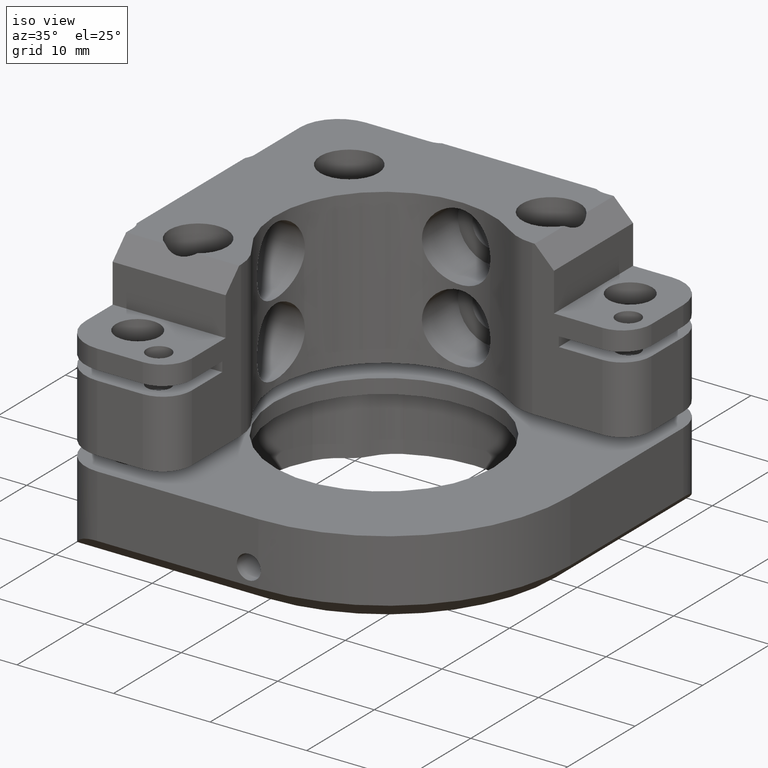
[diagram: clean part render]
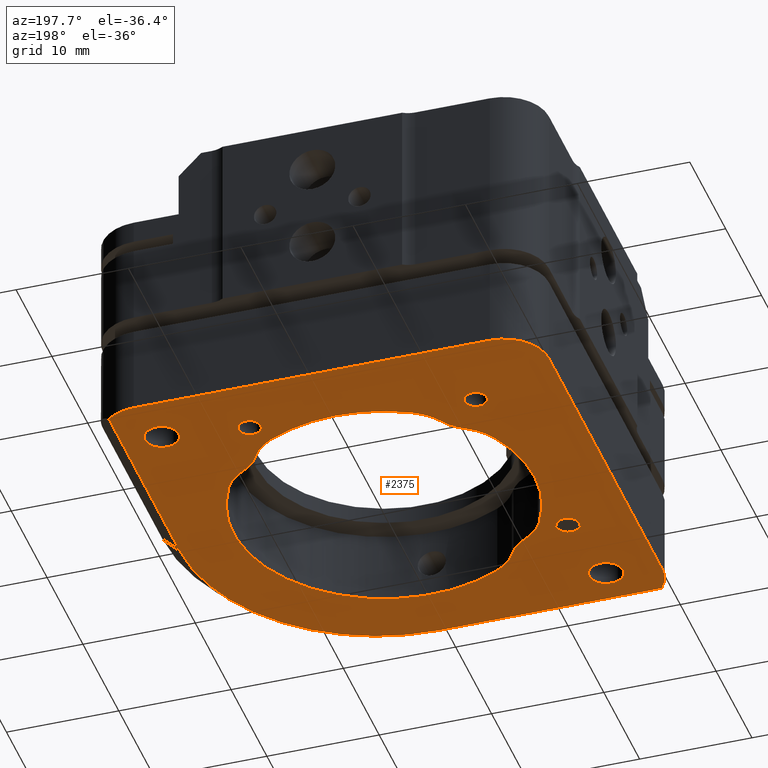
[diagram: tour spotlight — one face highlighted and labeled with its STEP entity id]
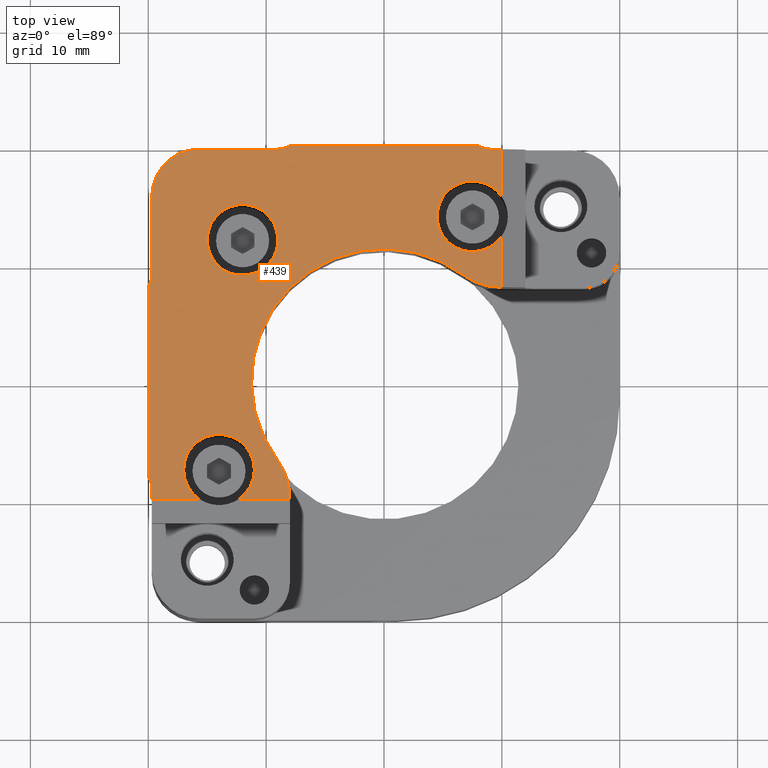
[diagram: tour spotlight — one face highlighted and labeled with its STEP entity id]
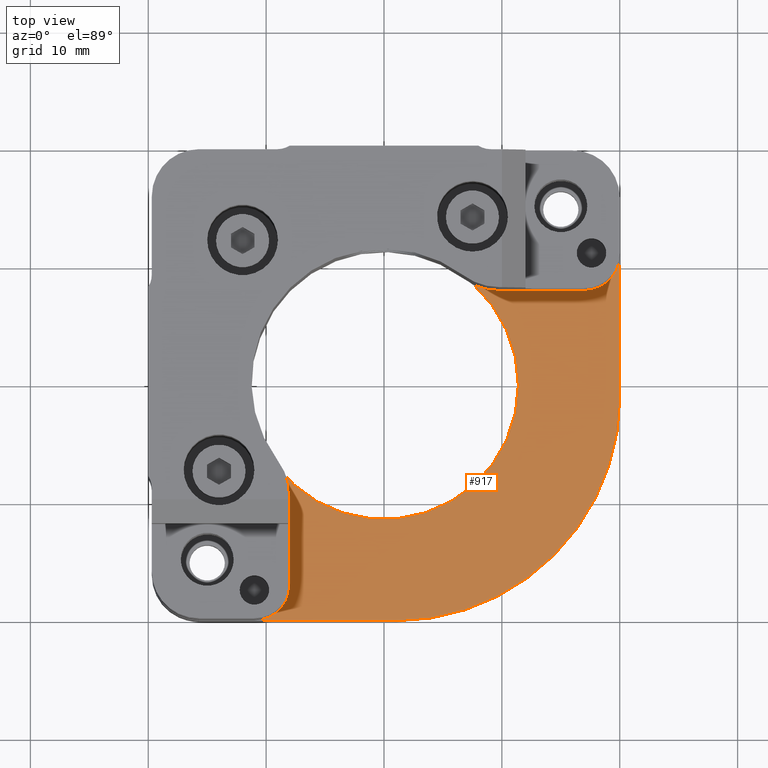
[diagram: tour spotlight — one face highlighted and labeled with its STEP entity id]
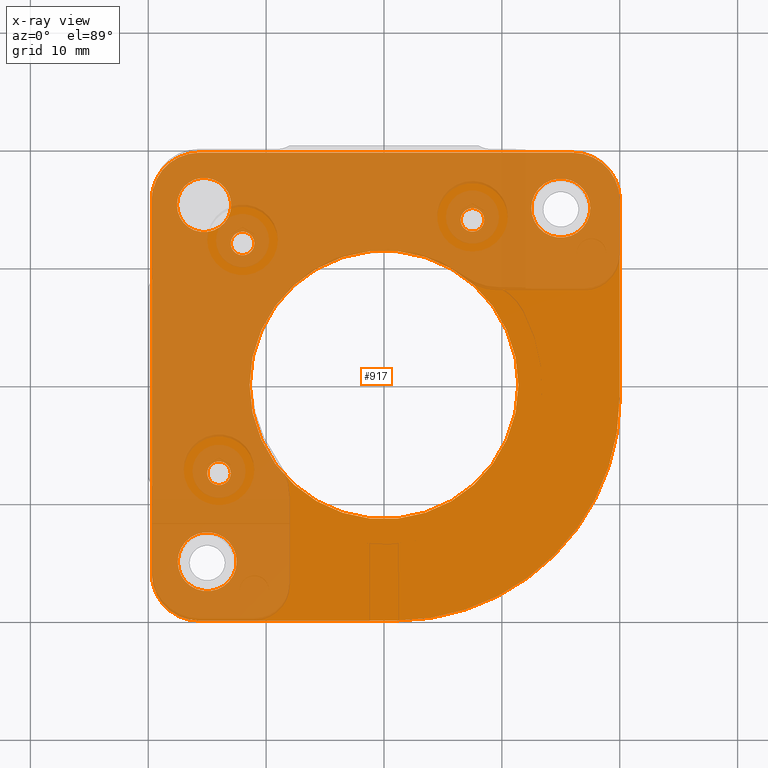
[diagram: x-ray of the same camera — body ghosted, this tour face saturated]
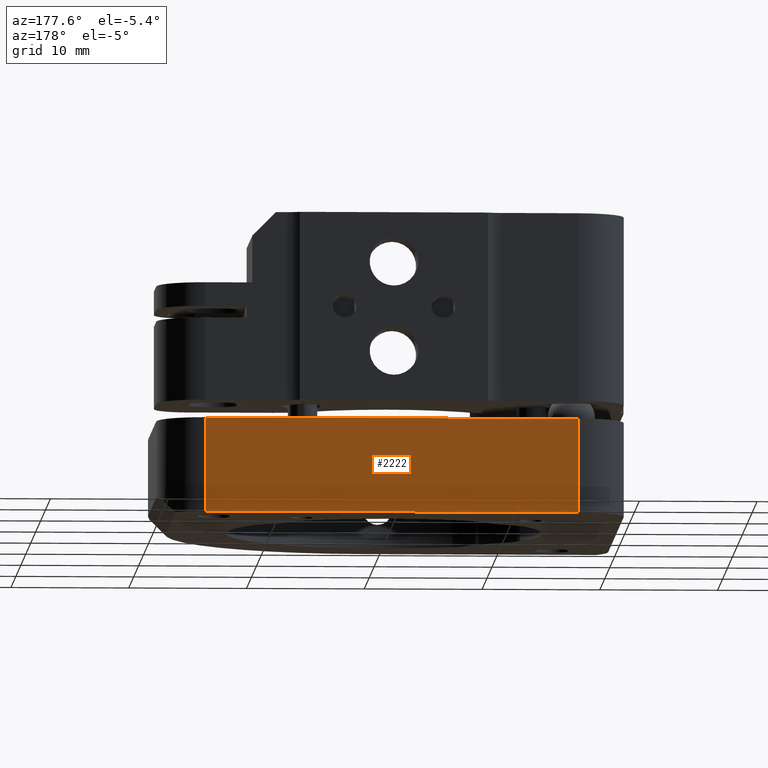
[diagram: tour spotlight — one face highlighted and labeled with its STEP entity id]
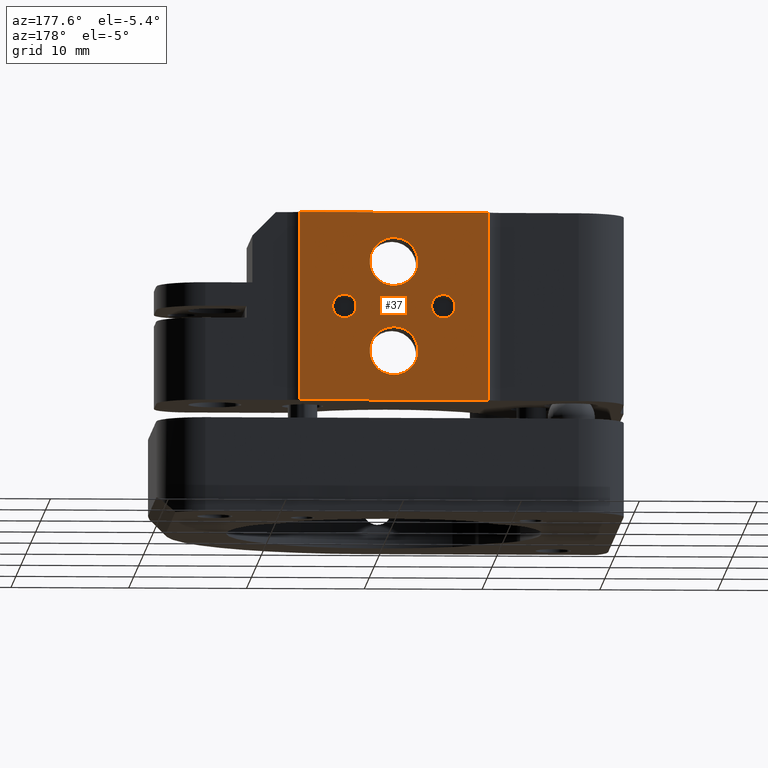
[diagram: tour spotlight — one face highlighted and labeled with its STEP entity id]
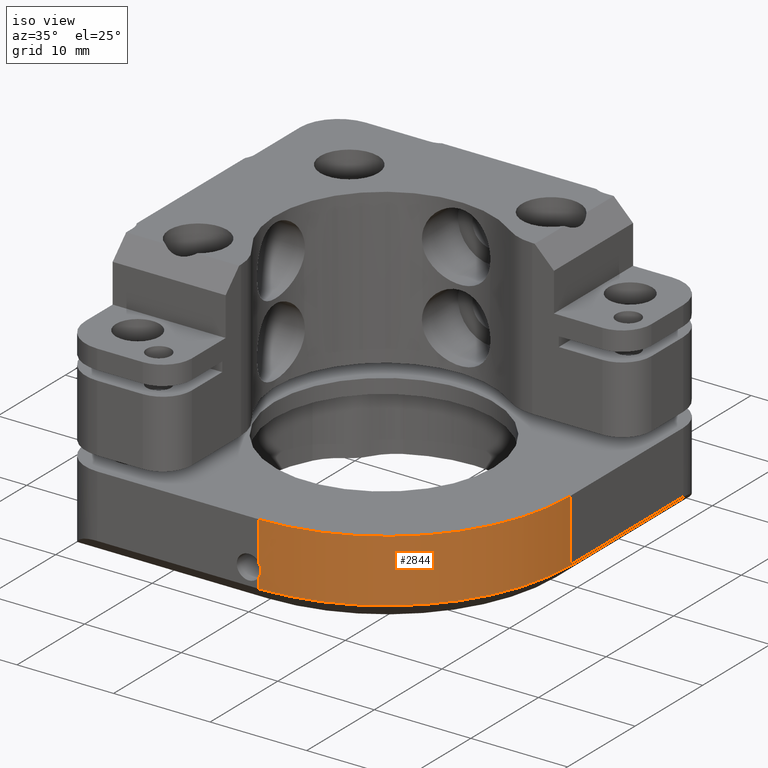
[diagram: tour spotlight — one face highlighted and labeled with its STEP entity id]
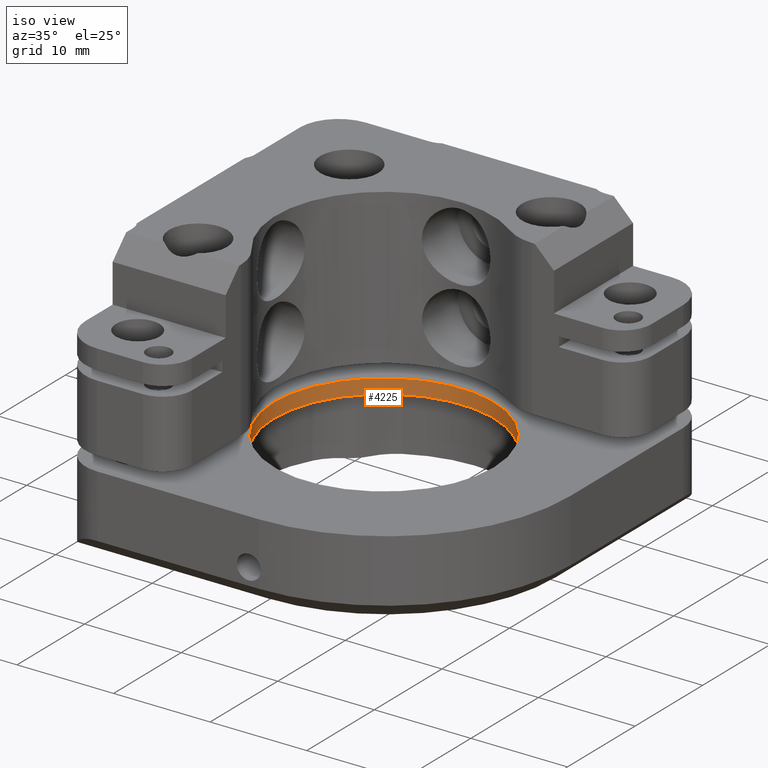
[diagram: tour spotlight — one face highlighted and labeled with its STEP entity id]
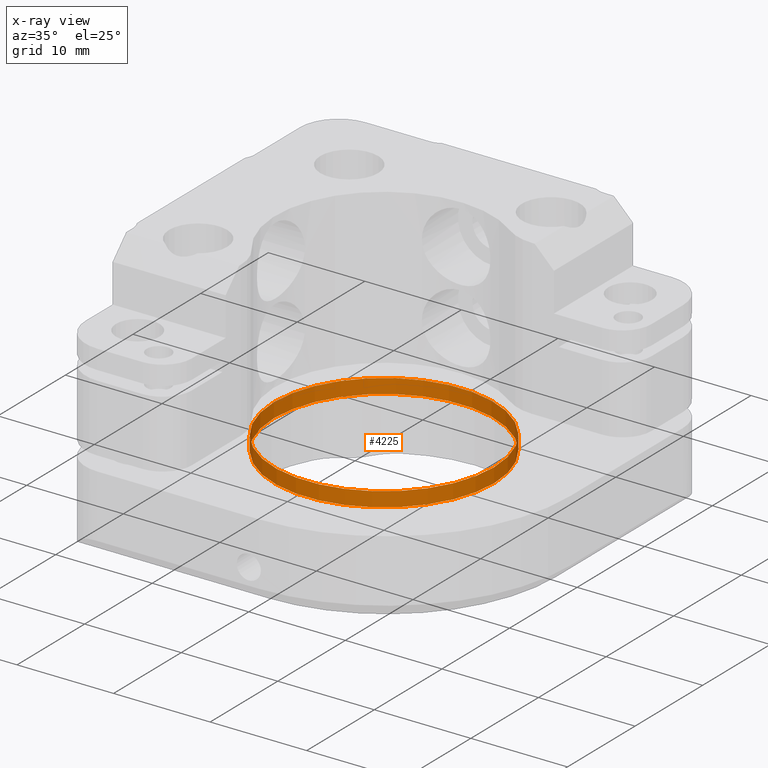
[diagram: x-ray of the same camera — body ghosted, this tour face saturated]
A machine part: a face-by-face anatomy tour. The part has 157 B-rep faces; the first image is the clean iso view, then the 7 largest visible faces are spotlighted one at a time (largest first), each with its STEP entity span.

Face 1 — auxiliary view, entity #2375. In plain terms, the highlighted planar face has unit normal (0, 0, -1).
Definition (entity closure, byte-faithful):
#33 = ORIENTED_EDGE ( 'NONE', *, *, #4202, .T. ) ;
#55 = VERTEX_POINT ( 'NONE', #131 ) ;
#67 = LINE ( 'NONE', #2630, #765 ) ;
#108 = CARTESIAN_POINT ( 'NONE',  ( 9.853515645894535879, 8.319081578215328676, 0.000000000000000000 ) ) ;
#124 = CARTESIAN_POINT ( 'NONE',  ( -18.82249899919919756, -18.50000000000000000, 0.000000000000000000 ) ) ;
#130 = EDGE_CURVE ( 'NONE', #826, #1975, #4595, .T. ) ;
#131 = CARTESIAN_POINT ( 'NONE',  ( -19.69999999999999929, 15.69999999999999929, 0.000000000000000000 ) ) ;
#167 = AXIS2_PLACEMENT_3D ( 'NONE', #3234, #3965, #3681 ) ;
#170 = EDGE_LOOP ( 'NONE', ( #4301 ) ) ;
#180 = DIRECTION ( 'NONE',  ( 0.000000000000000000, 0.000000000000000000, 1.000000000000000000 ) ) ;
#190 = ORIENTED_EDGE ( 'NONE', *, *, #3706, .T. ) ;
#223 = DIRECTION ( 'NONE',  ( 1.000000000000000000, -1.734723475976833521E-15, 0.000000000000000000 ) ) ;
#249 = EDGE_CURVE ( 'NONE', #3997, #3189, #3513, .T. ) ;
#258 = EDGE_CURVE ( 'NONE', #3189, #3764, #942, .T. ) ;
#262 = CIRCLE ( 'NONE', #2991, 17.50000000000000000 ) ;
#265 = EDGE_LOOP ( 'NONE', ( #3715, #1727, #3263, #1485, #4108, #3552, #3741, #2786, #4045, #4416, #33, #2829 ) ) ;
#282 = VERTEX_POINT ( 'NONE', #1367 ) ;
#317 = FACE_BOUND ( 'NONE', #2500, .T. ) ;
#332 = CIRCLE ( 'NONE', #1801, 4.000000000000000000 ) ;
#346 = CARTESIAN_POINT ( 'NONE',  ( 1.000000000000000000, -1.000000000000000000, 0.000000000000000000 ) ) ;
#371 = ORIENTED_EDGE ( 'NONE', *, *, #3182, .F. ) ;
#401 = LINE ( 'NONE', #4029, #4775 ) ;
#468 = CARTESIAN_POINT ( 'NONE',  ( 18.50000000000000000, -1.000000000000000000, 0.000000000000000000 ) ) ;
#480 = AXIS2_PLACEMENT_3D ( 'NONE', #2737, #180, #3520 ) ;
#509 = VERTEX_POINT ( 'NONE', #4550 ) ;
#525 = AXIS2_PLACEMENT_3D ( 'NONE', #2286, #3409, #2679 ) ;
#534 = DIRECTION ( 'NONE',  ( 0.000000000000000000, 0.000000000000000000, 1.000000000000000000 ) ) ;
#556 = VECTOR ( 'NONE', #2622, 1000.000000000000000 ) ;
#564 = VECTOR ( 'NONE', #4710, 1000.000000000000000 ) ;
#575 = CARTESIAN_POINT ( 'NONE',  ( 16.50000005889890176, 14.99999994110090284, 0.000000000000000000 ) ) ;
#619 = EDGE_CURVE ( 'NONE', #282, #3926, #2962, .T. ) ;
#639 = CARTESIAN_POINT ( 'NONE',  ( 3.957079609863960012, 7.409556056957629977, 0.000000000000000000 ) ) ;
#642 = AXIS2_PLACEMENT_3D ( 'NONE', #2225, #3695, #3374 ) ;
#651 = FACE_BOUND ( 'NONE', #1413, .T. ) ;
#655 = EDGE_CURVE ( 'NONE', #2728, #4787, #4769, .T. ) ;
#670 = CARTESIAN_POINT ( 'NONE',  ( -3.957079580769689908, 7.409556072495439238, 0.000000000000000000 ) ) ;
#688 = DIRECTION ( 'NONE',  ( 1.000000000000000000, 0.000000000000000000, 0.000000000000000000 ) ) ;
#723 = AXIS2_PLACEMENT_3D ( 'NONE', #670, #3958, #4401 ) ;
#741 = DIRECTION ( 'NONE',  ( 1.000000000000000000, 0.000000000000000000, 0.000000000000000000 ) ) ;
#765 = VECTOR ( 'NONE', #2261, 1000.000000000000000 ) ;
#826 = VERTEX_POINT ( 'NONE', #1360 ) ;
#942 = CIRCLE ( 'NONE', #723, 4.999999999999999112 ) ;
#960 = EDGE_CURVE ( 'NONE', #1877, #1702, #401, .T. ) ;
#967 = EDGE_CURVE ( 'NONE', #4787, #3012, #3691, .T. ) ;
#992 = EDGE_CURVE ( 'NONE', #2961, #3178, #1575, .T. ) ;
#1103 = ORIENTED_EDGE ( 'NONE', *, *, #1721, .T. ) ;
#1104 = CARTESIAN_POINT ( 'NONE',  ( -15.69999999999999929, 19.69999999999999929, 0.000000000000000000 ) ) ;
#1106 = CARTESIAN_POINT ( 'NONE',  ( -11.82000609600213181, -6.312484129918437326, 0.000000000000000000 ) ) ;
#1235 = CARTESIAN_POINT ( 'NONE',  ( -6.312484093132727736, 11.82000611564753001, 0.000000000000000000 ) ) ;
#1236 = DIRECTION ( 'NONE',  ( -0.000000000000000000, -0.000000000000000000, -1.000000000000000000 ) ) ;
#1341 = CIRCLE ( 'NONE', #3772, 1.000000000000000888 ) ;
#1360 = CARTESIAN_POINT ( 'NONE',  ( -8.319081586240146819, -9.853515639119216019, 0.000000000000000000 ) ) ;
#1367 = CARTESIAN_POINT ( 'NONE',  ( -15.69999999999999929, 19.69999999999999929, 0.000000000000000000 ) ) ;
#1376 = CIRCLE ( 'NONE', #525, 1.499999999999999556 ) ;
#1412 = AXIS2_PLACEMENT_3D ( 'NONE', #346, #3604, #1826 ) ;
#1413 = EDGE_LOOP ( 'NONE', ( #2263 ) ) ;
#1453 = CARTESIAN_POINT ( 'NONE',  ( 8.500000058899091826, 13.99999994110090107, 0.000000000000000000 ) ) ;
#1460 = EDGE_CURVE ( 'NONE', #1975, #2961, #2044, .T. ) ;
#1461 = DIRECTION ( 'NONE',  ( 1.000000000000000000, 0.000000000000000000, 0.000000000000000000 ) ) ;
#1465 = CARTESIAN_POINT ( 'NONE',  ( 0.000000000000000000, 0.000000000000000000, 0.000000000000000000 ) ) ;
#1467 = CARTESIAN_POINT ( 'NONE',  ( 18.50000000000000000, 18.82249899919919756, 0.000000000000000000 ) ) ;
#1479 = EDGE_CURVE ( 'NONE', #1877, #1936, #262, .T. ) ;
#1480 = DIRECTION ( 'NONE',  ( 0.000000000000000000, 0.000000000000000000, 1.000000000000000000 ) ) ;
#1485 = ORIENTED_EDGE ( 'NONE', *, *, #130, .T. ) ;
#1509 = CIRCLE ( 'NONE', #2913, 4.000000000000100364 ) ;
#1516 = DIRECTION ( 'NONE',  ( 0.000000000000000000, 0.000000000000000000, 1.000000000000000000 ) ) ;
#1532 = CARTESIAN_POINT ( 'NONE',  ( -11.82000611564784620, 6.312484093132243679, 0.000000000000000000 ) ) ;
#1535 = DIRECTION ( 'NONE',  ( 0.000000000000000000, 1.000000000000000000, 0.000000000000000000 ) ) ;
#1575 = CIRCLE ( 'NONE', #642, 4.999999999999940492 ) ;
#1589 = CARTESIAN_POINT ( 'NONE',  ( -15.69999999999999929, 15.69999999999999929, 0.000000000000000000 ) ) ;
#1592 = ORIENTED_EDGE ( 'NONE', *, *, #1479, .T. ) ;
#1597 = ORIENTED_EDGE ( 'NONE', *, *, #960, .F. ) ;
#1616 = EDGE_CURVE ( 'NONE', #2791, #2791, #3820, .T. ) ;
#1632 = CARTESIAN_POINT ( 'NONE',  ( -11.80868324581549977, 11.80868324581519957, 0.000000000000000000 ) ) ;
#1652 = CARTESIAN_POINT ( 'NONE',  ( 7.500000058899090050, 13.99999994110090107, 0.000000000000000000 ) ) ;
#1659 = EDGE_CURVE ( 'NONE', #3178, #2763, #4062, .T. ) ;
#1702 = VERTEX_POINT ( 'NONE', #1467 ) ;
#1710 = CARTESIAN_POINT ( 'NONE',  ( -9.853515613228880810, 8.319081616905988241, 0.000000000000000000 ) ) ;
#1721 = EDGE_CURVE ( 'NONE', #509, #509, #2418, .T. ) ;
#1723 = CARTESIAN_POINT ( 'NONE',  ( -6.312484056346408856, -11.82000613529330302, 0.000000000000000000 ) ) ;
#1727 = ORIENTED_EDGE ( 'NONE', *, *, #4792, .T. ) ;
#1743 = EDGE_CURVE ( 'NONE', #4135, #4594, #332, .T. ) ;
#1760 = DIRECTION ( 'NONE',  ( 0.000000000000000000, 0.000000000000000000, 1.000000000000000000 ) ) ;
#1769 = FACE_BOUND ( 'NONE', #265, .T. ) ;
#1801 = AXIS2_PLACEMENT_3D ( 'NONE', #2660, #1516, #741 ) ;
#1809 = AXIS2_PLACEMENT_3D ( 'NONE', #3381, #2600, #4090 ) ;
#1824 = DIRECTION ( 'NONE',  ( 1.000000000000000000, 0.000000000000000000, 0.000000000000000000 ) ) ;
#1826 = DIRECTION ( 'NONE',  ( -1.000000000000000000, 0.000000000000000000, -0.000000000000000000 ) ) ;
#1877 = VERTEX_POINT ( 'NONE', #468 ) ;
#1881 = AXIS2_PLACEMENT_3D ( 'NONE', #4534, #4443, #1906 ) ;
#1906 = DIRECTION ( 'NONE',  ( 1.000000000000000000, 0.000000000000000000, 0.000000000000000000 ) ) ;
#1936 = VERTEX_POINT ( 'NONE', #4555 ) ;
#1942 = VERTEX_POINT ( 'NONE', #2357 ) ;
#1975 = VERTEX_POINT ( 'NONE', #1723 ) ;
#1998 = DIRECTION ( 'NONE',  ( 1.000000000000000000, 0.000000000000000000, 0.000000000000000000 ) ) ;
#2032 = EDGE_LOOP ( 'NONE', ( #1103 ) ) ;
#2044 = CIRCLE ( 'NONE', #3769, 13.40000000000000036 ) ;
#2082 = ORIENTED_EDGE ( 'NONE', *, *, #619, .T. ) ;
#2107 = FACE_OUTER_BOUND ( 'NONE', #4638, .T. ) ;
#2113 = ORIENTED_EDGE ( 'NONE', *, *, #4666, .F. ) ;
#2225 = CARTESIAN_POINT ( 'NONE',  ( 7.409556088033459886, 3.957079551675179996, 0.000000000000000000 ) ) ;
#2247 = DIRECTION ( 'NONE',  ( 0.000000000000000000, 0.000000000000000000, 1.000000000000000000 ) ) ;
#2258 = DIRECTION ( 'NONE',  ( 0.000000000000000000, -0.000000000000000000, -1.000000000000000000 ) ) ;
#2261 = DIRECTION ( 'NONE',  ( -0.000000000000000000, 1.000000000000000000, 0.000000000000000000 ) ) ;
#2263 = ORIENTED_EDGE ( 'NONE', *, *, #1616, .T. ) ;
#2272 = CIRCLE ( 'NONE', #167, 1.000000000000000888 ) ;
#2281 = CIRCLE ( 'NONE', #3379, 5.000000000000119016 ) ;
#2286 = CARTESIAN_POINT ( 'NONE',  ( 15.00000005889889998, 14.99999994110090284, 0.000000000000000000 ) ) ;
#2287 = AXIS2_PLACEMENT_3D ( 'NONE', #2586, #3026, #1461 ) ;
#2344 = EDGE_CURVE ( 'NONE', #1942, #1942, #2272, .T. ) ;
#2357 = CARTESIAN_POINT ( 'NONE',  ( -10.99999994110110002, 11.99999994110090107, 0.000000000000000000 ) ) ;
#2363 = DIRECTION ( 'NONE',  ( 0.000000000000000000, 0.000000000000000000, 1.000000000000000000 ) ) ;
#2375 = ADVANCED_FACE ( 'NONE', ( #1769, #4824, #3709, #2107, #651, #2947, #317 ), #4380, .T. ) ;
#2396 = CARTESIAN_POINT ( 'NONE',  ( -8.319081616906265353, 9.853515613228642778, 0.000000000000000000 ) ) ;
#2418 = CIRCLE ( 'NONE', #1881, 1.500000000000001332 ) ;
#2454 = VERTEX_POINT ( 'NONE', #575 ) ;
#2500 = EDGE_LOOP ( 'NONE', ( #3816 ) ) ;
#2516 = CARTESIAN_POINT ( 'NONE',  ( 11.80868329218330004, 11.80868319944739930, 0.000000000000000000 ) ) ;
#2521 = CIRCLE ( 'NONE', #2287, 5.000000000000000000 ) ;
#2572 = CARTESIAN_POINT ( 'NONE',  ( 0.000000000000000000, 0.000000000000000000, 0.000000000000000000 ) ) ;
#2586 = CARTESIAN_POINT ( 'NONE',  ( -7.409556060180420012, -3.957079603829469772, 0.000000000000000000 ) ) ;
#2600 = DIRECTION ( 'NONE',  ( 0.000000000000000000, 0.000000000000000000, 1.000000000000000000 ) ) ;
#2602 = AXIS2_PLACEMENT_3D ( 'NONE', #4257, #2363, #4625 ) ;
#2622 = DIRECTION ( 'NONE',  ( 1.000000000000000000, 0.000000000000000000, 0.000000000000000000 ) ) ;
#2630 = CARTESIAN_POINT ( 'NONE',  ( -19.69999999999999929, -16.00000000000000000, 0.000000000000000000 ) ) ;
#2643 = AXIS2_PLACEMENT_3D ( 'NONE', #1632, #1236, #3880 ) ;
#2660 = CARTESIAN_POINT ( 'NONE',  ( -15.69999999999999929, -16.00000000000000000, 0.000000000000000000 ) ) ;
#2663 = AXIS2_PLACEMENT_3D ( 'NONE', #2572, #4738, #3674 ) ;
#2673 = AXIS2_PLACEMENT_3D ( 'NONE', #1465, #2247, #688 ) ;
#2679 = DIRECTION ( 'NONE',  ( 1.000000000000000000, 0.000000000000000000, 0.000000000000000000 ) ) ;
#2728 = VERTEX_POINT ( 'NONE', #1710 ) ;
#2737 = CARTESIAN_POINT ( 'NONE',  ( -3.957079557709680007, -7.409556084810669851, 0.000000000000000000 ) ) ;
#2763 = VERTEX_POINT ( 'NONE', #2837 ) ;
#2786 = ORIENTED_EDGE ( 'NONE', *, *, #4297, .T. ) ;
#2791 = VERTEX_POINT ( 'NONE', #4230 ) ;
#2829 = ORIENTED_EDGE ( 'NONE', *, *, #655, .T. ) ;
#2837 = CARTESIAN_POINT ( 'NONE',  ( 8.319081655597036828, 9.853515580563046328, 0.000000000000000000 ) ) ;
#2857 = LINE ( 'NONE', #4031, #564 ) ;
#2858 = CIRCLE ( 'NONE', #4252, 4.000000000000000000 ) ;
#2891 = DIRECTION ( 'NONE',  ( 1.000000000000000000, 0.000000000000000000, 0.000000000000000000 ) ) ;
#2909 = DIRECTION ( 'NONE',  ( 0.000000000000000000, 0.000000000000000000, 1.000000000000000000 ) ) ;
#2913 = AXIS2_PLACEMENT_3D ( 'NONE', #4465, #2953, #4487 ) ;
#2947 = FACE_BOUND ( 'NONE', #170, .T. ) ;
#2953 = DIRECTION ( 'NONE',  ( -0.000000000000000000, -0.000000000000000000, -1.000000000000000000 ) ) ;
#2961 = VERTEX_POINT ( 'NONE', #4130 ) ;
#2962 = LINE ( 'NONE', #1104, #556 ) ;
#2991 = AXIS2_PLACEMENT_3D ( 'NONE', #4453, #2258, #1824 ) ;
#2998 = CARTESIAN_POINT ( 'NONE',  ( 0.000000000000000000, 0.000000000000000000, 0.000000000000000000 ) ) ;
#3012 = VERTEX_POINT ( 'NONE', #1106 ) ;
#3026 = DIRECTION ( 'NONE',  ( 0.000000000000000000, 0.000000000000000000, 1.000000000000000000 ) ) ;
#3178 = VERTEX_POINT ( 'NONE', #108 ) ;
#3182 = EDGE_CURVE ( 'NONE', #282, #55, #2858, .T. ) ;
#3189 = VERTEX_POINT ( 'NONE', #1235 ) ;
#3234 = CARTESIAN_POINT ( 'NONE',  ( -11.99999994110110002, 11.99999994110090107, 0.000000000000000000 ) ) ;
#3245 = DIRECTION ( 'NONE',  ( -0.000000000000000000, -0.000000000000000000, -1.000000000000000000 ) ) ;
#3263 = ORIENTED_EDGE ( 'NONE', *, *, #4803, .T. ) ;
#3283 = AXIS2_PLACEMENT_3D ( 'NONE', #4052, #2909, #4789 ) ;
#3312 = VERTEX_POINT ( 'NONE', #1453 ) ;
#3374 = DIRECTION ( 'NONE',  ( 1.000000000000000000, 0.000000000000000000, 0.000000000000000000 ) ) ;
#3379 = AXIS2_PLACEMENT_3D ( 'NONE', #639, #1760, #4812 ) ;
#3381 = CARTESIAN_POINT ( 'NONE',  ( -7.409556072495670165, 3.957079580769459870, 0.000000000000000000 ) ) ;
#3382 = CIRCLE ( 'NONE', #2602, 4.000000000000000000 ) ;
#3409 = DIRECTION ( 'NONE',  ( 0.000000000000000000, 0.000000000000000000, 1.000000000000000000 ) ) ;
#3431 = ORIENTED_EDGE ( 'NONE', *, *, #1743, .F. ) ;
#3449 = CARTESIAN_POINT ( 'NONE',  ( 6.312484139544934258, 11.82000609086112775, 0.000000000000000000 ) ) ;
#3492 = CARTESIAN_POINT ( 'NONE',  ( -19.69999999999999929, -16.00000000000000000, 0.000000000000000000 ) ) ;
#3513 = CIRCLE ( 'NONE', #2663, 13.40000000000000036 ) ;
#3520 = DIRECTION ( 'NONE',  ( 1.000000000000000000, 0.000000000000000000, 0.000000000000000000 ) ) ;
#3552 = ORIENTED_EDGE ( 'NONE', *, *, #992, .T. ) ;
#3604 = DIRECTION ( 'NONE',  ( 0.000000000000000000, 0.000000000000000000, -1.000000000000000000 ) ) ;
#3607 = ORIENTED_EDGE ( 'NONE', *, *, #4343, .T. ) ;
#3627 = CARTESIAN_POINT ( 'NONE',  ( 16.00000000000000000, 19.69999999999999929, 0.000000000000000000 ) ) ;
#3674 = DIRECTION ( 'NONE',  ( 1.000000000000000000, 0.000000000000000000, 0.000000000000000000 ) ) ;
#3681 = DIRECTION ( 'NONE',  ( 1.000000000000000000, 0.000000000000000000, 0.000000000000000000 ) ) ;
#3691 = CIRCLE ( 'NONE', #2673, 13.40000000000000036 ) ;
#3695 = DIRECTION ( 'NONE',  ( 0.000000000000000000, 0.000000000000000000, 1.000000000000000000 ) ) ;
#3706 = EDGE_CURVE ( 'NONE', #4135, #55, #67, .T. ) ;
#3709 = FACE_BOUND ( 'NONE', #2032, .T. ) ;
#3714 = EDGE_CURVE ( 'NONE', #2454, #2454, #1376, .T. ) ;
#3715 = ORIENTED_EDGE ( 'NONE', *, *, #967, .T. ) ;
#3741 = ORIENTED_EDGE ( 'NONE', *, *, #1659, .T. ) ;
#3764 = VERTEX_POINT ( 'NONE', #2396 ) ;
#3769 = AXIS2_PLACEMENT_3D ( 'NONE', #2998, #1480, #2891 ) ;
#3772 = AXIS2_PLACEMENT_3D ( 'NONE', #1652, #534, #3852 ) ;
#3816 = ORIENTED_EDGE ( 'NONE', *, *, #4720, .T. ) ;
#3820 = CIRCLE ( 'NONE', #3283, 0.9999999999999991118 ) ;
#3852 = DIRECTION ( 'NONE',  ( 1.000000000000000000, 0.000000000000000000, 0.000000000000000000 ) ) ;
#3880 = DIRECTION ( 'NONE',  ( 1.000000000000000000, 8.673617379884035472E-16, 0.000000000000000000 ) ) ;
#3897 = AXIS2_PLACEMENT_3D ( 'NONE', #2516, #3245, #223 ) ;
#3926 = VERTEX_POINT ( 'NONE', #3627 ) ;
#3958 = DIRECTION ( 'NONE',  ( 0.000000000000000000, 0.000000000000000000, 1.000000000000000000 ) ) ;
#3965 = DIRECTION ( 'NONE',  ( 0.000000000000000000, 0.000000000000000000, 1.000000000000000000 ) ) ;
#3997 = VERTEX_POINT ( 'NONE', #3449 ) ;
#4029 = CARTESIAN_POINT ( 'NONE',  ( 18.50000000000000000, -1.000000000000000000, 0.000000000000000000 ) ) ;
#4031 = CARTESIAN_POINT ( 'NONE',  ( 1.000000000000000000, -18.50000000000000000, 0.000000000000000000 ) ) ;
#4045 = ORIENTED_EDGE ( 'NONE', *, *, #249, .T. ) ;
#4052 = CARTESIAN_POINT ( 'NONE',  ( -13.99999994110110002, -7.500000058899100708, 0.000000000000000000 ) ) ;
#4062 = CIRCLE ( 'NONE', #3897, 3.999999999999939160 ) ;
#4090 = DIRECTION ( 'NONE',  ( 1.000000000000000000, 0.000000000000000000, 0.000000000000000000 ) ) ;
#4108 = ORIENTED_EDGE ( 'NONE', *, *, #1460, .T. ) ;
#4126 = CARTESIAN_POINT ( 'NONE',  ( -9.853515587338254278, -8.319081647572025062, 0.000000000000000000 ) ) ;
#4130 = CARTESIAN_POINT ( 'NONE',  ( 11.82000614043433906, 6.312484046719912811, 0.000000000000000000 ) ) ;
#4135 = VERTEX_POINT ( 'NONE', #3492 ) ;
#4202 = EDGE_CURVE ( 'NONE', #3764, #2728, #4740, .T. ) ;
#4230 = CARTESIAN_POINT ( 'NONE',  ( -12.99999994110110180, -7.500000058899100708, 0.000000000000000000 ) ) ;
#4252 = AXIS2_PLACEMENT_3D ( 'NONE', #1589, #4582, #1998 ) ;
#4257 = CARTESIAN_POINT ( 'NONE',  ( 16.00000000000000000, 15.69999999999999929, 0.000000000000000000 ) ) ;
#4275 = EDGE_LOOP ( 'NONE', ( #4622 ) ) ;
#4297 = EDGE_CURVE ( 'NONE', #2763, #3997, #2281, .T. ) ;
#4301 = ORIENTED_EDGE ( 'NONE', *, *, #2344, .T. ) ;
#4343 = EDGE_CURVE ( 'NONE', #1936, #4594, #2857, .T. ) ;
#4380 = PLANE ( 'NONE',  #1412 ) ;
#4401 = DIRECTION ( 'NONE',  ( 1.000000000000000000, 0.000000000000000000, 0.000000000000000000 ) ) ;
#4416 = ORIENTED_EDGE ( 'NONE', *, *, #258, .T. ) ;
#4443 = DIRECTION ( 'NONE',  ( 0.000000000000000000, 0.000000000000000000, 1.000000000000000000 ) ) ;
#4453 = CARTESIAN_POINT ( 'NONE',  ( 1.000000000000000888, -1.000000000000000000, 0.000000000000000000 ) ) ;
#4465 = CARTESIAN_POINT ( 'NONE',  ( -11.80868320906459878, -11.80868328256609878, 0.000000000000000000 ) ) ;
#4487 = DIRECTION ( 'NONE',  ( 1.000000000000000000, 4.336808689941908873E-15, 0.000000000000000000 ) ) ;
#4534 = CARTESIAN_POINT ( 'NONE',  ( -14.99999994110110002, -15.00000005889910071, 0.000000000000000000 ) ) ;
#4550 = CARTESIAN_POINT ( 'NONE',  ( -13.49999994110109824, -15.00000005889910071, 0.000000000000000000 ) ) ;
#4555 = CARTESIAN_POINT ( 'NONE',  ( 1.000000000000000444, -18.50000000000000000, 0.000000000000000000 ) ) ;
#4568 = VERTEX_POINT ( 'NONE', #4126 ) ;
#4582 = DIRECTION ( 'NONE',  ( 0.000000000000000000, 0.000000000000000000, 1.000000000000000000 ) ) ;
#4594 = VERTEX_POINT ( 'NONE', #124 ) ;
#4595 = CIRCLE ( 'NONE', #480, 5.000000000000000000 ) ;
#4622 = ORIENTED_EDGE ( 'NONE', *, *, #3714, .T. ) ;
#4625 = DIRECTION ( 'NONE',  ( 1.000000000000000000, 0.000000000000000000, 0.000000000000000000 ) ) ;
#4638 = EDGE_LOOP ( 'NONE', ( #371, #2082, #2113, #1597, #1592, #3607, #3431, #190 ) ) ;
#4666 = EDGE_CURVE ( 'NONE', #1702, #3926, #3382, .T. ) ;
#4710 = DIRECTION ( 'NONE',  ( -1.000000000000000000, 0.000000000000000000, -0.000000000000000000 ) ) ;
#4720 = EDGE_CURVE ( 'NONE', #3312, #3312, #1341, .T. ) ;
#4738 = DIRECTION ( 'NONE',  ( 0.000000000000000000, 0.000000000000000000, 1.000000000000000000 ) ) ;
#4740 = CIRCLE ( 'NONE', #2643, 4.000000000000000000 ) ;
#4769 = CIRCLE ( 'NONE', #1809, 5.000000000000000888 ) ;
#4775 = VECTOR ( 'NONE', #1535, 1000.000000000000000 ) ;
#4787 = VERTEX_POINT ( 'NONE', #1532 ) ;
#4789 = DIRECTION ( 'NONE',  ( 1.000000000000000000, 0.000000000000000000, 0.000000000000000000 ) ) ;
#4792 = EDGE_CURVE ( 'NONE', #3012, #4568, #2521, .T. ) ;
#4803 = EDGE_CURVE ( 'NONE', #4568, #826, #1509, .T. ) ;
#4812 = DIRECTION ( 'NONE',  ( 1.000000000000000000, 0.000000000000000000, 0.000000000000000000 ) ) ;
#4824 = FACE_BOUND ( 'NONE', #4275, .T. ) ;

Face 2 — top view, entity #439. In plain terms, the highlighted planar face has unit normal (0, 0, 1).
Definition (entity closure, byte-faithful):
#49 = EDGE_CURVE ( 'NONE', #2926, #2106, #2346, .T. ) ;
#106 = ORIENTED_EDGE ( 'NONE', *, *, #2794, .T. ) ;
#117 = EDGE_CURVE ( 'NONE', #2360, #2106, #4287, .T. ) ;
#189 = VERTEX_POINT ( 'NONE', #1082 ) ;
#238 = DIRECTION ( 'NONE',  ( 1.000000000000000000, 0.000000000000000000, 0.000000000000000000 ) ) ;
#242 = VECTOR ( 'NONE', #540, 1000.000000000000000 ) ;
#379 = LINE ( 'NONE', #1492, #4646 ) ;
#391 = CARTESIAN_POINT ( 'NONE',  ( 9.999999999999648281, -3.191891195797330102E-13, 25.49999999999990763 ) ) ;
#430 = ORIENTED_EDGE ( 'NONE', *, *, #3426, .T. ) ;
#437 = LINE ( 'NONE', #3128, #2817 ) ;
#439 = ADVANCED_FACE ( 'NONE', ( #2835, #4318 ), #2153, .T. ) ;
#454 = VECTOR ( 'NONE', #952, 1000.000000000000000 ) ;
#540 = DIRECTION ( 'NONE',  ( 9.789361583617419394E-14, 1.000000000000000000, -0.000000000000000000 ) ) ;
#570 = CARTESIAN_POINT ( 'NONE',  ( -19.69999999999999929, -9.053565375284833294, 25.50000000000000355 ) ) ;
#641 = VECTOR ( 'NONE', #2738, 1000.000000000000000 ) ;
#672 = DIRECTION ( 'NONE',  ( 1.000000000000000000, 1.156482317317871331E-15, 0.000000000000000000 ) ) ;
#679 = ORIENTED_EDGE ( 'NONE', *, *, #4171, .F. ) ;
#689 = VECTOR ( 'NONE', #3351, 1000.000000000000000 ) ;
#691 = CARTESIAN_POINT ( 'NONE',  ( -11.99999994110110002, 11.99999994110090107, 25.50000000000000355 ) ) ;
#693 = CIRCLE ( 'NONE', #1694, 4.999999999999999112 ) ;
#707 = ORIENTED_EDGE ( 'NONE', *, *, #2748, .F. ) ;
#804 = VECTOR ( 'NONE', #1785, 1000.000000000000000 ) ;
#856 = CARTESIAN_POINT ( 'NONE',  ( 15.99999999999930012, -9.999999999999051425, 25.50000000000000355 ) ) ;
#857 = LINE ( 'NONE', #4680, #3174 ) ;
#874 = DIRECTION ( 'NONE',  ( -0.000000000000000000, -0.000000000000000000, -1.000000000000000000 ) ) ;
#905 = DIRECTION ( 'NONE',  ( 1.000000000000000000, 1.715641517741063832E-12, 0.000000000000000000 ) ) ;
#952 = DIRECTION ( 'NONE',  ( 1.000000000000000000, 0.000000000000000000, -0.000000000000000000 ) ) ;
#953 = DIRECTION ( 'NONE',  ( 3.340807778344010440E-14, 1.000000000000000000, -0.000000000000000000 ) ) ;
#999 = VERTEX_POINT ( 'NONE', #3396 ) ;
#1029 = DIRECTION ( 'NONE',  ( 1.000000000000000000, 0.000000000000000000, 0.000000000000000000 ) ) ;
#1037 = CARTESIAN_POINT ( 'NONE',  ( -19.69999999999940243, 15.69999999999947171, 25.50000000000000355 ) ) ;
#1082 = CARTESIAN_POINT ( 'NONE',  ( 9.999999999999602096, 12.34168745712883641, 25.49999999999995381 ) ) ;
#1091 = EDGE_CURVE ( 'NONE', #4436, #1761, #1337, .T. ) ;
#1108 = CARTESIAN_POINT ( 'NONE',  ( -8.999999941101101797, 11.99999994110090107, 25.50000000000000355 ) ) ;
#1112 = LINE ( 'NONE', #2159, #3525 ) ;
#1115 = DIRECTION ( 'NONE',  ( 1.000000000000000000, 1.734723475976876317E-15, 0.000000000000000000 ) ) ;
#1222 = AXIS2_PLACEMENT_3D ( 'NONE', #3311, #3333, #672 ) ;
#1251 = VERTEX_POINT ( 'NONE', #2795 ) ;
#1260 = ORIENTED_EDGE ( 'NONE', *, *, #3442, .F. ) ;
#1266 = CARTESIAN_POINT ( 'NONE',  ( -19.69999999999999929, -9.053565375284751582, 25.50000000000000355 ) ) ;
#1337 = CIRCLE ( 'NONE', #4079, 5.000000000000000888 ) ;
#1358 = VERTEX_POINT ( 'NONE', #3945 ) ;
#1365 = EDGE_CURVE ( 'NONE', #4378, #1358, #2517, .T. ) ;
#1369 = CARTESIAN_POINT ( 'NONE',  ( -7.999999999999613642, 20.00000000000000000, 25.50000000000000355 ) ) ;
#1372 = VECTOR ( 'NONE', #2300, 1000.000000000000000 ) ;
#1426 = DIRECTION ( 'NONE',  ( -0.000000000000000000, -0.000000000000000000, -1.000000000000000000 ) ) ;
#1434 = EDGE_CURVE ( 'NONE', #4046, #189, #1894, .T. ) ;
#1447 = EDGE_LOOP ( 'NONE', ( #3462 ) ) ;
#1452 = EDGE_CURVE ( 'NONE', #2744, #1251, #1112, .T. ) ;
#1492 = CARTESIAN_POINT ( 'NONE',  ( -20.00000000000000000, 8.000000000000000000, 25.50000000000000355 ) ) ;
#1504 = DIRECTION ( 'NONE',  ( 0.000000000000000000, 1.000000000000000000, 0.000000000000000000 ) ) ;
#1522 = LINE ( 'NONE', #4091, #1372 ) ;
#1579 = AXIS2_PLACEMENT_3D ( 'NONE', #2987, #2641, #2595 ) ;
#1634 = LINE ( 'NONE', #4633, #641 ) ;
#1694 = AXIS2_PLACEMENT_3D ( 'NONE', #4714, #1426, #3651 ) ;
#1717 = AXIS2_PLACEMENT_3D ( 'NONE', #3157, #4639, #2789 ) ;
#1761 = VERTEX_POINT ( 'NONE', #2226 ) ;
#1785 = DIRECTION ( 'NONE',  ( 1.000000000000000000, 0.000000000000000000, 0.000000000000000000 ) ) ;
#1803 = ORIENTED_EDGE ( 'NONE', *, *, #2292, .F. ) ;
#1811 = CARTESIAN_POINT ( 'NONE',  ( 9.053565375284520655, 19.70000000000037588, 25.50000000000000355 ) ) ;
#1847 = CARTESIAN_POINT ( 'NONE',  ( 9.053565375284520655, 21.69999999999999929, 25.50000000000000355 ) ) ;
#1878 = VERTEX_POINT ( 'NONE', #1946 ) ;
#1894 = LINE ( 'NONE', #391, #3841 ) ;
#1922 = ORIENTED_EDGE ( 'NONE', *, *, #1091, .F. ) ;
#1925 = AXIS2_PLACEMENT_3D ( 'NONE', #2881, #4365, #1029 ) ;
#1946 = CARTESIAN_POINT ( 'NONE',  ( -7.999999999999819700, -9.999999999999051425, 25.50000000000000355 ) ) ;
#1963 = ORIENTED_EDGE ( 'NONE', *, *, #3028, .F. ) ;
#2023 = DIRECTION ( 'NONE',  ( -0.000000000000000000, -0.000000000000000000, -1.000000000000000000 ) ) ;
#2033 = AXIS2_PLACEMENT_3D ( 'NONE', #2180, #3648, #2916 ) ;
#2088 = CARTESIAN_POINT ( 'NONE',  ( -13.99999994110110002, -7.500000058899130018, 25.50000000000000355 ) ) ;
#2106 = VERTEX_POINT ( 'NONE', #570 ) ;
#2120 = ORIENTED_EDGE ( 'NONE', *, *, #2320, .T. ) ;
#2121 = ORIENTED_EDGE ( 'NONE', *, *, #3401, .F. ) ;
#2126 = DIRECTION ( 'NONE',  ( 1.000000000000000000, 0.000000000000000000, 0.000000000000000000 ) ) ;
#2135 = VERTEX_POINT ( 'NONE', #3547 ) ;
#2153 = PLANE ( 'NONE',  #2033 ) ;
#2159 = CARTESIAN_POINT ( 'NONE',  ( 9.999999999999536371, -3.191891195797330102E-13, 25.50000000000001776 ) ) ;
#2161 = AXIS2_PLACEMENT_3D ( 'NONE', #691, #4709, #2126 ) ;
#2172 = ORIENTED_EDGE ( 'NONE', *, *, #1434, .T. ) ;
#2180 = CARTESIAN_POINT ( 'NONE',  ( 15.99999999999930012, 15.70000000000069917, 25.50000000000000355 ) ) ;
#2211 = CARTESIAN_POINT ( 'NONE',  ( 15.99999999999930012, -9.999999999999051425, 25.50000000000000355 ) ) ;
#2213 = AXIS2_PLACEMENT_3D ( 'NONE', #2088, #2847, #238 ) ;
#2226 = CARTESIAN_POINT ( 'NONE',  ( 6.743482706156223472, 8.998801245334528076, 25.50000000000000355 ) ) ;
#2227 = CARTESIAN_POINT ( 'NONE',  ( -21.69999999999999929, 9.053565375284501116, 25.50000000000000355 ) ) ;
#2292 = EDGE_CURVE ( 'NONE', #3849, #3510, #2585, .T. ) ;
#2300 = DIRECTION ( 'NONE',  ( -3.059259397016970338E-14, -1.000000000000000000, -0.000000000000000000 ) ) ;
#2320 = EDGE_CURVE ( 'NONE', #4284, #3708, #3368, .T. ) ;
#2346 = LINE ( 'NONE', #1266, #242 ) ;
#2360 = VERTEX_POINT ( 'NONE', #4018 ) ;
#2455 = ORIENTED_EDGE ( 'NONE', *, *, #3354, .T. ) ;
#2495 = LINE ( 'NONE', #2211, #3126 ) ;
#2517 = CIRCLE ( 'NONE', #2213, 3.000000000000000888 ) ;
#2525 = CARTESIAN_POINT ( 'NONE',  ( -19.70000000000005969, -9.999999999999051425, 25.50000000000000355 ) ) ;
#2540 = ORIENTED_EDGE ( 'NONE', *, *, #3858, .T. ) ;
#2585 = CIRCLE ( 'NONE', #1717, 4.000000000000000000 ) ;
#2595 = DIRECTION ( 'NONE',  ( 1.000000000000000000, 0.000000000000000000, 0.000000000000000000 ) ) ;
#2626 = EDGE_CURVE ( 'NONE', #1251, #4284, #437, .T. ) ;
#2641 = DIRECTION ( 'NONE',  ( -0.000000000000000000, -0.000000000000000000, -1.000000000000000000 ) ) ;
#2711 = CARTESIAN_POINT ( 'NONE',  ( -20.00000000000000000, 7.999999999999320544, 25.50000000000000355 ) ) ;
#2738 = DIRECTION ( 'NONE',  ( 1.000000000000000000, 3.340807778343670283E-14, -0.000000000000000000 ) ) ;
#2744 = VERTEX_POINT ( 'NONE', #3103 ) ;
#2748 = EDGE_CURVE ( 'NONE', #3510, #999, #1634, .T. ) ;
#2758 = CARTESIAN_POINT ( 'NONE',  ( -7.999999999999777955, -9.741883700952461922, 25.50000000000000355 ) ) ;
#2789 = DIRECTION ( 'NONE',  ( 1.000000000000000000, -8.673617379884035472E-16, 0.000000000000000000 ) ) ;
#2794 = EDGE_CURVE ( 'NONE', #2926, #4378, #2495, .T. ) ;
#2795 = CARTESIAN_POINT ( 'NONE',  ( 9.999999999999582556, 19.70000000000043627, 25.50000000000002132 ) ) ;
#2817 = VECTOR ( 'NONE', #3545, 1000.000000000000000 ) ;
#2835 = FACE_OUTER_BOUND ( 'NONE', #4557, .T. ) ;
#2847 = DIRECTION ( 'NONE',  ( -0.000000000000000000, -0.000000000000000000, -1.000000000000000000 ) ) ;
#2881 = CARTESIAN_POINT ( 'NONE',  ( 6.938893903907229955E-15, 1.387778780781449935E-14, 25.50000000000000355 ) ) ;
#2912 = CARTESIAN_POINT ( 'NONE',  ( -15.65831242507401200, -9.999999999999049649, 25.50000000000000355 ) ) ;
#2916 = DIRECTION ( 'NONE',  ( 1.000000000000000000, 0.000000000000000000, -0.000000000000000000 ) ) ;
#2926 = VERTEX_POINT ( 'NONE', #2525 ) ;
#2949 = AXIS2_PLACEMENT_3D ( 'NONE', #2227, #3479, #4549 ) ;
#2952 = CIRCLE ( 'NONE', #1222, 3.000000000000000000 ) ;
#2970 = DIRECTION ( 'NONE',  ( -0.000000000000000000, -0.000000000000000000, -1.000000000000000000 ) ) ;
#2975 = ORIENTED_EDGE ( 'NONE', *, *, #1452, .T. ) ;
#2986 = DIRECTION ( 'NONE',  ( 1.387778780781449935E-14, 1.000000000000000000, -0.000000000000000000 ) ) ;
#2987 = CARTESIAN_POINT ( 'NONE',  ( -9.053565375284501116, 21.69999999999999929, 25.50000000000000355 ) ) ;
#3024 = CIRCLE ( 'NONE', #2161, 2.999999999999999112 ) ;
#3028 = EDGE_CURVE ( 'NONE', #4201, #1878, #1522, .T. ) ;
#3072 = CARTESIAN_POINT ( 'NONE',  ( 9.741883700952479685, 12.99999999999979927, 25.50000000000000355 ) ) ;
#3086 = VERTEX_POINT ( 'NONE', #4559 ) ;
#3090 = VERTEX_POINT ( 'NONE', #2711 ) ;
#3103 = CARTESIAN_POINT ( 'NONE',  ( 9.999999999999545253, 15.65831242507304744, 25.50000000000000711 ) ) ;
#3105 = EDGE_CURVE ( 'NONE', #1358, #1878, #3540, .T. ) ;
#3126 = VECTOR ( 'NONE', #4320, 1000.000000000000000 ) ;
#3128 = CARTESIAN_POINT ( 'NONE',  ( 15.99999999999930012, 19.70000000000049667, 25.50000000000000355 ) ) ;
#3157 = CARTESIAN_POINT ( 'NONE',  ( -15.69999999999940243, 15.69999999999940243, 25.50000000000000355 ) ) ;
#3174 = VECTOR ( 'NONE', #953, 1000.000000000000000 ) ;
#3248 = CARTESIAN_POINT ( 'NONE',  ( 8.000000000000000000, 20.00000000000000000, 25.50000000000000355 ) ) ;
#3292 = ORIENTED_EDGE ( 'NONE', *, *, #49, .F. ) ;
#3298 = EDGE_CURVE ( 'NONE', #4820, #4820, #3024, .T. ) ;
#3311 = CARTESIAN_POINT ( 'NONE',  ( 7.500000058899120248, 13.99999994110090107, 25.50000000000000355 ) ) ;
#3333 = DIRECTION ( 'NONE',  ( -0.000000000000000000, -0.000000000000000000, -1.000000000000000000 ) ) ;
#3342 = ORIENTED_EDGE ( 'NONE', *, *, #4430, .F. ) ;
#3351 = DIRECTION ( 'NONE',  ( -1.000000000000000000, -0.000000000000000000, -0.000000000000000000 ) ) ;
#3354 = EDGE_CURVE ( 'NONE', #3086, #1761, #4032, .T. ) ;
#3365 = ORIENTED_EDGE ( 'NONE', *, *, #117, .T. ) ;
#3368 = CIRCLE ( 'NONE', #3985, 1.999999999999920286 ) ;
#3396 = CARTESIAN_POINT ( 'NONE',  ( -9.053565375284465588, 19.69999999999960494, 25.50000000000000355 ) ) ;
#3401 = EDGE_CURVE ( 'NONE', #4046, #4436, #3818, .T. ) ;
#3426 = EDGE_CURVE ( 'NONE', #2135, #3090, #3568, .T. ) ;
#3442 = EDGE_CURVE ( 'NONE', #2360, #3090, #379, .T. ) ;
#3462 = ORIENTED_EDGE ( 'NONE', *, *, #3298, .T. ) ;
#3477 = ORIENTED_EDGE ( 'NONE', *, *, #1365, .T. ) ;
#3479 = DIRECTION ( 'NONE',  ( -0.000000000000000000, -0.000000000000000000, -1.000000000000000000 ) ) ;
#3510 = VERTEX_POINT ( 'NONE', #3889 ) ;
#3525 = VECTOR ( 'NONE', #4743, 1000.000000000000000 ) ;
#3540 = LINE ( 'NONE', #856, #454 ) ;
#3545 = DIRECTION ( 'NONE',  ( -1.000000000000000000, -0.000000000000000000, 0.000000000000000000 ) ) ;
#3548 = ORIENTED_EDGE ( 'NONE', *, *, #3105, .T. ) ;
#3547 = CARTESIAN_POINT ( 'NONE',  ( -19.69999999999962270, 9.053565375284465588, 25.50000000000000355 ) ) ;
#3568 = CIRCLE ( 'NONE', #2949, 2.000000000000071054 ) ;
#3648 = DIRECTION ( 'NONE',  ( 0.000000000000000000, 0.000000000000000000, 1.000000000000000000 ) ) ;
#3651 = DIRECTION ( 'NONE',  ( 1.000000000000000000, 3.472916398905568308E-13, 0.000000000000000000 ) ) ;
#3708 = VERTEX_POINT ( 'NONE', #4504 ) ;
#3719 = CARTESIAN_POINT ( 'NONE',  ( 9.741883700952479685, 8.000000000000000000, 25.50000000000000355 ) ) ;
#3813 = VERTEX_POINT ( 'NONE', #1369 ) ;
#3818 = LINE ( 'NONE', #3719, #689 ) ;
#3822 = AXIS2_PLACEMENT_3D ( 'NONE', #4632, #2023, #905 ) ;
#3841 = VECTOR ( 'NONE', #1504, 1000.000000000000000 ) ;
#3849 = VERTEX_POINT ( 'NONE', #1037 ) ;
#3858 = EDGE_CURVE ( 'NONE', #189, #2744, #2952, .T. ) ;
#3889 = CARTESIAN_POINT ( 'NONE',  ( -15.69999999999991580, 19.69999999999938112, 25.50000000000000355 ) ) ;
#3898 = ORIENTED_EDGE ( 'NONE', *, *, #2626, .T. ) ;
#3911 = EDGE_CURVE ( 'NONE', #3086, #4201, #693, .T. ) ;
#3945 = CARTESIAN_POINT ( 'NONE',  ( -12.34168745712818982, -9.999999999999049649, 25.50000000000000355 ) ) ;
#3979 = LINE ( 'NONE', #3248, #804 ) ;
#3985 = AXIS2_PLACEMENT_3D ( 'NONE', #1847, #2970, #1115 ) ;
#4018 = CARTESIAN_POINT ( 'NONE',  ( -20.00000000000022382, -7.999999999999436007, 25.50000000000000355 ) ) ;
#4032 = CIRCLE ( 'NONE', #1925, 11.24513151818800161 ) ;
#4046 = VERTEX_POINT ( 'NONE', #4479 ) ;
#4079 = AXIS2_PLACEMENT_3D ( 'NONE', #3072, #874, #4146 ) ;
#4091 = CARTESIAN_POINT ( 'NONE',  ( -8.000000000000000000, -17.00000000000000000, 25.50000000000000355 ) ) ;
#4146 = DIRECTION ( 'NONE',  ( 1.000000000000000000, 1.040834085586084059E-15, 0.000000000000000000 ) ) ;
#4171 = EDGE_CURVE ( 'NONE', #2135, #3849, #857, .T. ) ;
#4201 = VERTEX_POINT ( 'NONE', #2758 ) ;
#4218 = CIRCLE ( 'NONE', #1579, 2.000000000000000000 ) ;
#4284 = VERTEX_POINT ( 'NONE', #1811 ) ;
#4287 = CIRCLE ( 'NONE', #3822, 1.999999999999998224 ) ;
#4318 = FACE_BOUND ( 'NONE', #1447, .T. ) ;
#4320 = DIRECTION ( 'NONE',  ( 1.000000000000000000, 0.000000000000000000, -0.000000000000000000 ) ) ;
#4365 = DIRECTION ( 'NONE',  ( -0.000000000000000000, -0.000000000000000000, -1.000000000000000000 ) ) ;
#4378 = VERTEX_POINT ( 'NONE', #2912 ) ;
#4430 = EDGE_CURVE ( 'NONE', #3813, #3708, #3979, .T. ) ;
#4436 = VERTEX_POINT ( 'NONE', #4759 ) ;
#4460 = ORIENTED_EDGE ( 'NONE', *, *, #3911, .F. ) ;
#4477 = EDGE_CURVE ( 'NONE', #3813, #999, #4218, .T. ) ;
#4479 = CARTESIAN_POINT ( 'NONE',  ( 9.999999999999708677, 8.000000000000000000, 25.49999999999996803 ) ) ;
#4504 = CARTESIAN_POINT ( 'NONE',  ( 7.999999999999248601, 20.00000000000000000, 25.50000000000000355 ) ) ;
#4549 = DIRECTION ( 'NONE',  ( 1.000000000000000000, -1.734723475976745563E-14, 0.000000000000000000 ) ) ;
#4557 = EDGE_LOOP ( 'NONE', ( #2172, #2540, #2975, #3898, #2120, #3342, #4721, #707, #1803, #679, #430, #1260, #3365, #3292, #106, #3477, #3548, #1963, #4460, #2455, #1922, #2121 ) ) ;
#4559 = CARTESIAN_POINT ( 'NONE',  ( -8.998801245330062315, -6.743482706153304918, 25.50000000000000355 ) ) ;
#4632 = CARTESIAN_POINT ( 'NONE',  ( -21.69999999999999929, -9.053565375284501116, 25.50000000000000355 ) ) ;
#4633 = CARTESIAN_POINT ( 'NONE',  ( -9.053565375284501116, 19.69999999999960494, 25.50000000000000355 ) ) ;
#4639 = DIRECTION ( 'NONE',  ( -0.000000000000000000, -0.000000000000000000, -1.000000000000000000 ) ) ;
#4646 = VECTOR ( 'NONE', #2986, 1000.000000000000000 ) ;
#4680 = CARTESIAN_POINT ( 'NONE',  ( -19.69999999999940243, 15.69999999999959961, 25.50000000000000355 ) ) ;
#4709 = DIRECTION ( 'NONE',  ( -0.000000000000000000, -0.000000000000000000, -1.000000000000000000 ) ) ;
#4714 = CARTESIAN_POINT ( 'NONE',  ( -13.00000000000000178, -9.741883700952261194, 25.50000000000000355 ) ) ;
#4721 = ORIENTED_EDGE ( 'NONE', *, *, #4477, .T. ) ;
#4743 = DIRECTION ( 'NONE',  ( 0.000000000000000000, 1.000000000000000000, 0.000000000000000000 ) ) ;
#4759 = CARTESIAN_POINT ( 'NONE',  ( 9.741883700952479685, 7.999999999999899636, 25.50000000000000355 ) ) ;
#4820 = VERTEX_POINT ( 'NONE', #1108 ) ;

Face 3 — top view, entity #917. An x-ray twin of the same camera follows (body ghosted, this face saturated) — the face is partly hidden behind the body. In plain terms, the highlighted planar face has unit normal (0, 0, -1).
Definition (entity closure, byte-faithful):
#64 = EDGE_LOOP ( 'NONE', ( #3938 ) ) ;
#68 = AXIS2_PLACEMENT_3D ( 'NONE', #2604, #4449, #2103 ) ;
#90 = VERTEX_POINT ( 'NONE', #1981 ) ;
#134 = AXIS2_PLACEMENT_3D ( 'NONE', #538, #1608, #3099 ) ;
#160 = DIRECTION ( 'NONE',  ( 1.000000000000000000, 0.000000000000000000, 0.000000000000000000 ) ) ;
#162 = EDGE_CURVE ( 'NONE', #1162, #1162, #336, .T. ) ;
#197 = FACE_OUTER_BOUND ( 'NONE', #3862, .T. ) ;
#244 = CIRCLE ( 'NONE', #3517, 0.9999999999999991118 ) ;
#278 = FACE_BOUND ( 'NONE', #4182, .T. ) ;
#279 = CARTESIAN_POINT ( 'NONE',  ( 1.000000000000000000, -20.00000000000000000, 8.000000000000000000 ) ) ;
#335 = CARTESIAN_POINT ( 'NONE',  ( -3.469446951953609850E-15, 0.000000000000000000, 8.000000000000000000 ) ) ;
#336 = CIRCLE ( 'NONE', #3053, 1.000000000000000888 ) ;
#363 = CARTESIAN_POINT ( 'NONE',  ( -11.99999994110110002, 11.99999994110090107, 8.000000000000000000 ) ) ;
#368 = DIRECTION ( 'NONE',  ( 0.000000000000000000, 0.000000000000000000, 1.000000000000000000 ) ) ;
#405 = EDGE_CURVE ( 'NONE', #3320, #3320, #1028, .T. ) ;
#476 = EDGE_LOOP ( 'NONE', ( #973 ) ) ;
#478 = VECTOR ( 'NONE', #4364, 1000.000000000000000 ) ;
#538 = CARTESIAN_POINT ( 'NONE',  ( -14.99999994110110002, -15.00000005889910071, 8.000000000000000000 ) ) ;
#643 = DIRECTION ( 'NONE',  ( 0.000000000000000000, 0.000000000000000000, 1.000000000000000000 ) ) ;
#668 = EDGE_CURVE ( 'NONE', #2633, #1850, #2903, .T. ) ;
#676 = ORIENTED_EDGE ( 'NONE', *, *, #2533, .F. ) ;
#697 = DIRECTION ( 'NONE',  ( 1.000000000000000000, 0.000000000000000000, 0.000000000000000000 ) ) ;
#837 = DIRECTION ( 'NONE',  ( -0.000000000000000000, 0.000000000000000000, 1.000000000000000000 ) ) ;
#851 = DIRECTION ( 'NONE',  ( 1.000000000000000000, 0.000000000000000000, 0.000000000000000000 ) ) ;
#900 = DIRECTION ( 'NONE',  ( -0.000000000000000000, -0.000000000000000000, -1.000000000000000000 ) ) ;
#917 = ADVANCED_FACE ( 'NONE', ( #2122, #2047, #3168, #197, #278, #1680, #4285, #4650 ), #1307, .F. ) ;
#949 = CARTESIAN_POINT ( 'NONE',  ( 1.000000000000000000, -1.000000000000000000, 8.000000000000000000 ) ) ;
#954 = VECTOR ( 'NONE', #1837, 1000.000000000000000 ) ;
#957 = DIRECTION ( 'NONE',  ( 1.000000000000000000, 0.000000000000000000, 0.000000000000000000 ) ) ;
#973 = ORIENTED_EDGE ( 'NONE', *, *, #2855, .F. ) ;
#1028 = CIRCLE ( 'NONE', #1105, 11.40000000000000036 ) ;
#1038 = AXIS2_PLACEMENT_3D ( 'NONE', #3417, #3871, #851 ) ;
#1089 = DIRECTION ( 'NONE',  ( 1.000000000000000000, 0.000000000000000000, 0.000000000000000000 ) ) ;
#1105 = AXIS2_PLACEMENT_3D ( 'NONE', #335, #643, #1422 ) ;
#1158 = EDGE_CURVE ( 'NONE', #3271, #1984, #1427, .T. ) ;
#1162 = VERTEX_POINT ( 'NONE', #1486 ) ;
#1218 = CIRCLE ( 'NONE', #2864, 2.500000000000000444 ) ;
#1252 = ORIENTED_EDGE ( 'NONE', *, *, #2063, .F. ) ;
#1264 = LINE ( 'NONE', #3124, #1613 ) ;
#1307 = PLANE ( 'NONE',  #3129 ) ;
#1334 = ORIENTED_EDGE ( 'NONE', *, *, #3553, .F. ) ;
#1373 = CARTESIAN_POINT ( 'NONE',  ( -13.99999994110110002, -7.500000058899100708, 8.000000000000000000 ) ) ;
#1396 = CARTESIAN_POINT ( 'NONE',  ( -19.69999999999999929, 15.69999999999999929, 8.000000000000000000 ) ) ;
#1422 = DIRECTION ( 'NONE',  ( 1.000000000000000000, 0.000000000000000000, 0.000000000000000000 ) ) ;
#1427 = CIRCLE ( 'NONE', #1038, 4.000000000000000000 ) ;
#1486 = CARTESIAN_POINT ( 'NONE',  ( 8.500000058899091826, 13.99999994110090107, 8.000000000000000000 ) ) ;
#1548 = ORIENTED_EDGE ( 'NONE', *, *, #668, .F. ) ;
#1577 = EDGE_CURVE ( 'NONE', #90, #3271, #2832, .T. ) ;
#1608 = DIRECTION ( 'NONE',  ( 0.000000000000000000, 0.000000000000000000, 1.000000000000000000 ) ) ;
#1613 = VECTOR ( 'NONE', #3541, 1000.000000000000000 ) ;
#1680 = FACE_BOUND ( 'NONE', #476, .T. ) ;
#1693 = CARTESIAN_POINT ( 'NONE',  ( -12.49999994110110180, -15.00000005889910071, 8.000000000000000000 ) ) ;
#1703 = DIRECTION ( 'NONE',  ( 0.000000000000000000, 0.000000000000000000, -1.000000000000000000 ) ) ;
#1837 = DIRECTION ( 'NONE',  ( 1.000000000000000000, -0.000000000000000000, 0.000000000000000000 ) ) ;
#1850 = VERTEX_POINT ( 'NONE', #4189 ) ;
#1861 = AXIS2_PLACEMENT_3D ( 'NONE', #3016, #837, #4498 ) ;
#1888 = CIRCLE ( 'NONE', #1956, 4.000000000000000000 ) ;
#1956 = AXIS2_PLACEMENT_3D ( 'NONE', #3814, #2285, #4521 ) ;
#1976 = DIRECTION ( 'NONE',  ( 1.000000000000000000, 0.000000000000000000, 0.000000000000000000 ) ) ;
#1981 = CARTESIAN_POINT ( 'NONE',  ( 1.000000000000000000, -20.00000000000000000, 8.000000000000000000 ) ) ;
#1984 = VERTEX_POINT ( 'NONE', #3239 ) ;
#2003 = CIRCLE ( 'NONE', #1861, 2.299999999997458744 ) ;
#2037 = VERTEX_POINT ( 'NONE', #4620 ) ;
#2047 = FACE_BOUND ( 'NONE', #3144, .T. ) ;
#2063 = EDGE_CURVE ( 'NONE', #1984, #2841, #3937, .T. ) ;
#2103 = DIRECTION ( 'NONE',  ( 1.000000000000000000, 0.000000000000000000, 0.000000000000000000 ) ) ;
#2122 = FACE_BOUND ( 'NONE', #4095, .T. ) ;
#2203 = LINE ( 'NONE', #3699, #954 ) ;
#2223 = ORIENTED_EDGE ( 'NONE', *, *, #4007, .F. ) ;
#2276 = CIRCLE ( 'NONE', #4685, 1.000000000000000888 ) ;
#2285 = DIRECTION ( 'NONE',  ( -0.000000000000000000, -0.000000000000000000, -1.000000000000000000 ) ) ;
#2319 = EDGE_CURVE ( 'NONE', #3070, #3070, #244, .T. ) ;
#2330 = CARTESIAN_POINT ( 'NONE',  ( -12.99999994110110180, -7.500000058899100708, 8.000000000000000000 ) ) ;
#2417 = CARTESIAN_POINT ( 'NONE',  ( 16.00000000000000000, 19.69999999999999929, 8.000000000000000000 ) ) ;
#2424 = CARTESIAN_POINT ( 'NONE',  ( -19.69999999999999929, -1.000000000000000000, 8.000000000000000000 ) ) ;
#2456 = EDGE_LOOP ( 'NONE', ( #1334 ) ) ;
#2466 = CARTESIAN_POINT ( 'NONE',  ( -15.69999999999999929, -20.00000000000000000, 8.000000000000000000 ) ) ;
#2533 = EDGE_CURVE ( 'NONE', #2841, #2686, #1888, .T. ) ;
#2575 = VERTEX_POINT ( 'NONE', #1693 ) ;
#2583 = EDGE_LOOP ( 'NONE', ( #3943 ) ) ;
#2604 = CARTESIAN_POINT ( 'NONE',  ( 1.000000000000000000, -1.000000000000000000, 8.000000000000000000 ) ) ;
#2606 = VERTEX_POINT ( 'NONE', #3183 ) ;
#2633 = VERTEX_POINT ( 'NONE', #2417 ) ;
#2657 = CARTESIAN_POINT ( 'NONE',  ( 11.39999999999999680, 0.000000000000000000, 8.000000000000000000 ) ) ;
#2686 = VERTEX_POINT ( 'NONE', #3860 ) ;
#2746 = DIRECTION ( 'NONE',  ( 0.000000000000000000, 0.000000000000000000, 1.000000000000000000 ) ) ;
#2767 = CARTESIAN_POINT ( 'NONE',  ( 15.00000005889889998, 14.99999994110090284, 8.000000000000000000 ) ) ;
#2806 = CARTESIAN_POINT ( 'NONE',  ( 7.500000058899090050, 13.99999994110090107, 8.000000000000000000 ) ) ;
#2832 = LINE ( 'NONE', #279, #478 ) ;
#2841 = VERTEX_POINT ( 'NONE', #1396 ) ;
#2840 = DIRECTION ( 'NONE',  ( 0.000000000000000000, 1.000000000000000000, 0.000000000000000000 ) ) ;
#2855 = EDGE_CURVE ( 'NONE', #2037, #2037, #2276, .T. ) ;
#2864 = AXIS2_PLACEMENT_3D ( 'NONE', #2767, #2746, #160 ) ;
#2903 = CIRCLE ( 'NONE', #2985, 4.000000000000000000 ) ;
#2915 = ORIENTED_EDGE ( 'NONE', *, *, #3896, .F. ) ;
#2950 = ORIENTED_EDGE ( 'NONE', *, *, #4360, .F. ) ;
#2977 = VECTOR ( 'NONE', #2840, 1000.000000000000000 ) ;
#2985 = AXIS2_PLACEMENT_3D ( 'NONE', #4260, #900, #1976 ) ;
#3016 = CARTESIAN_POINT ( 'NONE',  ( -15.26421353292379912, 15.26421353292360017, 7.999999999981355359 ) ) ;
#3053 = AXIS2_PLACEMENT_3D ( 'NONE', #2806, #4293, #957 ) ;
#3070 = VERTEX_POINT ( 'NONE', #2330 ) ;
#3099 = DIRECTION ( 'NONE',  ( 1.000000000000000000, 0.000000000000000000, 0.000000000000000000 ) ) ;
#3124 = CARTESIAN_POINT ( 'NONE',  ( 20.00000000000000000, -1.000000000000000000, 8.000000000000000000 ) ) ;
#3129 = AXIS2_PLACEMENT_3D ( 'NONE', #949, #1703, #4313 ) ;
#3144 = EDGE_LOOP ( 'NONE', ( #3436 ) ) ;
#3168 = FACE_BOUND ( 'NONE', #2456, .T. ) ;
#3180 = EDGE_CURVE ( 'NONE', #2575, #2575, #3250, .T. ) ;
#3183 = CARTESIAN_POINT ( 'NONE',  ( 17.50000005889890176, 14.99999994110090284, 8.000000000000000000 ) ) ;
#3239 = CARTESIAN_POINT ( 'NONE',  ( -19.69999999999999929, -16.00000000000000000, 8.000000000000000000 ) ) ;
#3250 = CIRCLE ( 'NONE', #134, 2.499999999999998668 ) ;
#3271 = VERTEX_POINT ( 'NONE', #2466 ) ;
#3320 = VERTEX_POINT ( 'NONE', #2657 ) ;
#3417 = CARTESIAN_POINT ( 'NONE',  ( -15.69999999999999929, -16.00000000000000000, 8.000000000000000000 ) ) ;
#3436 = ORIENTED_EDGE ( 'NONE', *, *, #3180, .F. ) ;
#3488 = CIRCLE ( 'NONE', #68, 19.00000000000000000 ) ;
#3517 = AXIS2_PLACEMENT_3D ( 'NONE', #1373, #368, #1089 ) ;
#3541 = DIRECTION ( 'NONE',  ( -0.000000000000000000, -1.000000000000000000, -0.000000000000000000 ) ) ;
#3553 = EDGE_CURVE ( 'NONE', #2606, #2606, #1218, .T. ) ;
#3616 = ORIENTED_EDGE ( 'NONE', *, *, #1158, .F. ) ;
#3699 = CARTESIAN_POINT ( 'NONE',  ( 1.000000000000000000, 19.69999999999999929, 8.000000000000000000 ) ) ;
#3814 = CARTESIAN_POINT ( 'NONE',  ( -15.69999999999999929, 15.69999999999999929, 8.000000000000000000 ) ) ;
#3831 = ORIENTED_EDGE ( 'NONE', *, *, #4102, .F. ) ;
#3860 = CARTESIAN_POINT ( 'NONE',  ( -15.69999999999999929, 19.69999999999999929, 8.000000000000000000 ) ) ;
#3862 = EDGE_LOOP ( 'NONE', ( #1548, #2950, #676, #1252, #3616, #4454, #2915, #3831 ) ) ;
#3871 = DIRECTION ( 'NONE',  ( -0.000000000000000000, -0.000000000000000000, -1.000000000000000000 ) ) ;
#3896 = EDGE_CURVE ( 'NONE', #4305, #90, #3488, .T. ) ;
#3938 = ORIENTED_EDGE ( 'NONE', *, *, #162, .F. ) ;
#3937 = LINE ( 'NONE', #2424, #2977 ) ;
#3943 = ORIENTED_EDGE ( 'NONE', *, *, #405, .F. ) ;
#3984 = DIRECTION ( 'NONE',  ( 0.000000000000000000, 0.000000000000000000, 1.000000000000000000 ) ) ;
#4007 = EDGE_CURVE ( 'NONE', #4768, #4768, #2003, .T. ) ;
#4095 = EDGE_LOOP ( 'NONE', ( #2223 ) ) ;
#4102 = EDGE_CURVE ( 'NONE', #1850, #4305, #1264, .T. ) ;
#4182 = EDGE_LOOP ( 'NONE', ( #4368 ) ) ;
#4189 = CARTESIAN_POINT ( 'NONE',  ( 20.00000000000000000, 15.69999999999999929, 8.000000000000000000 ) ) ;
#4260 = CARTESIAN_POINT ( 'NONE',  ( 16.00000000000000000, 15.69999999999999929, 8.000000000000000000 ) ) ;
#4285 = FACE_BOUND ( 'NONE', #2583, .T. ) ;
#4293 = DIRECTION ( 'NONE',  ( 0.000000000000000000, 0.000000000000000000, 1.000000000000000000 ) ) ;
#4305 = VERTEX_POINT ( 'NONE', #4791 ) ;
#4313 = DIRECTION ( 'NONE',  ( -1.000000000000000000, 0.000000000000000000, -0.000000000000000000 ) ) ;
#4360 = EDGE_CURVE ( 'NONE', #2686, #2633, #2203, .T. ) ;
#4364 = DIRECTION ( 'NONE',  ( -1.000000000000000000, 0.000000000000000000, -0.000000000000000000 ) ) ;
#4368 = ORIENTED_EDGE ( 'NONE', *, *, #2319, .F. ) ;
#4404 = CARTESIAN_POINT ( 'NONE',  ( -12.96421353292634038, 15.26421353292360017, 7.999999999981355359 ) ) ;
#4449 = DIRECTION ( 'NONE',  ( -0.000000000000000000, -0.000000000000000000, -1.000000000000000000 ) ) ;
#4454 = ORIENTED_EDGE ( 'NONE', *, *, #1577, .F. ) ;
#4498 = DIRECTION ( 'NONE',  ( 1.000000000000000000, 0.000000000000000000, 0.000000000000000000 ) ) ;
#4521 = DIRECTION ( 'NONE',  ( 1.000000000000000000, 0.000000000000000000, 0.000000000000000000 ) ) ;
#4620 = CARTESIAN_POINT ( 'NONE',  ( -10.99999994110110002, 11.99999994110090107, 8.000000000000000000 ) ) ;
#4650 = FACE_BOUND ( 'NONE', #64, .T. ) ;
#4685 = AXIS2_PLACEMENT_3D ( 'NONE', #363, #3984, #697 ) ;
#4768 = VERTEX_POINT ( 'NONE', #4404 ) ;
#4791 = CARTESIAN_POINT ( 'NONE',  ( 20.00000000000000000, -1.000000000000000444, 8.000000000000000000 ) ) ;

Face 4 — auxiliary view, entity #2222. In plain terms, the highlighted planar face has unit normal (0, -1, 0).
Definition (entity closure, byte-faithful):
#282 = VERTEX_POINT ( 'NONE', #1367 ) ;
#483 = ORIENTED_EDGE ( 'NONE', *, *, #619, .F. ) ;
#556 = VECTOR ( 'NONE', #2622, 1000.000000000000000 ) ;
#619 = EDGE_CURVE ( 'NONE', #282, #3926, #2962, .T. ) ;
#774 = CARTESIAN_POINT ( 'NONE',  ( 16.00000000000000000, 19.69999999999999929, 0.000000000000000000 ) ) ;
#798 = DIRECTION ( 'NONE',  ( 0.000000000000000000, 0.000000000000000000, 1.000000000000000000 ) ) ;
#954 = VECTOR ( 'NONE', #1837, 1000.000000000000000 ) ;
#1054 = CARTESIAN_POINT ( 'NONE',  ( -15.69999999999999929, 19.69999999999999929, 0.000000000000000000 ) ) ;
#1104 = CARTESIAN_POINT ( 'NONE',  ( -15.69999999999999929, 19.69999999999999929, 0.000000000000000000 ) ) ;
#1163 = ORIENTED_EDGE ( 'NONE', *, *, #2613, .F. ) ;
#1367 = CARTESIAN_POINT ( 'NONE',  ( -15.69999999999999929, 19.69999999999999929, 0.000000000000000000 ) ) ;
#1627 = EDGE_CURVE ( 'NONE', #2686, #282, #3589, .T. ) ;
#1645 = VECTOR ( 'NONE', #798, 1000.000000000000000 ) ;
#1691 = DIRECTION ( 'NONE',  ( 0.000000000000000000, -0.000000000000000000, -1.000000000000000000 ) ) ;
#1714 = PLANE ( 'NONE',  #3758 ) ;
#1758 = DIRECTION ( 'NONE',  ( 0.000000000000000000, -0.000000000000000000, -1.000000000000000000 ) ) ;
#1837 = DIRECTION ( 'NONE',  ( 1.000000000000000000, -0.000000000000000000, 0.000000000000000000 ) ) ;
#2008 = ORIENTED_EDGE ( 'NONE', *, *, #4360, .T. ) ;
#2203 = LINE ( 'NONE', #3699, #954 ) ;
#2222 = ADVANCED_FACE ( 'NONE', ( #3916 ), #1714, .F. ) ;
#2417 = CARTESIAN_POINT ( 'NONE',  ( 16.00000000000000000, 19.69999999999999929, 8.000000000000000000 ) ) ;
#2613 = EDGE_CURVE ( 'NONE', #3926, #2633, #4482, .T. ) ;
#2622 = DIRECTION ( 'NONE',  ( 1.000000000000000000, 0.000000000000000000, 0.000000000000000000 ) ) ;
#2633 = VERTEX_POINT ( 'NONE', #2417 ) ;
#2686 = VERTEX_POINT ( 'NONE', #3860 ) ;
#2937 = EDGE_LOOP ( 'NONE', ( #1163, #483, #3587, #2008 ) ) ;
#2962 = LINE ( 'NONE', #1104, #556 ) ;
#3135 = CARTESIAN_POINT ( 'NONE',  ( -15.69999999999999929, 19.69999999999999929, 0.000000000000000000 ) ) ;
#3364 = VECTOR ( 'NONE', #1758, 1000.000000000000000 ) ;
#3528 = DIRECTION ( 'NONE',  ( 0.000000000000000000, -1.000000000000000000, 0.000000000000000000 ) ) ;
#3587 = ORIENTED_EDGE ( 'NONE', *, *, #1627, .F. ) ;
#3589 = LINE ( 'NONE', #1054, #3364 ) ;
#3627 = CARTESIAN_POINT ( 'NONE',  ( 16.00000000000000000, 19.69999999999999929, 0.000000000000000000 ) ) ;
#3699 = CARTESIAN_POINT ( 'NONE',  ( 1.000000000000000000, 19.69999999999999929, 8.000000000000000000 ) ) ;
#3758 = AXIS2_PLACEMENT_3D ( 'NONE', #3135, #3528, #1691 ) ;
#3860 = CARTESIAN_POINT ( 'NONE',  ( -15.69999999999999929, 19.69999999999999929, 8.000000000000000000 ) ) ;
#3916 = FACE_OUTER_BOUND ( 'NONE', #2937, .T. ) ;
#3926 = VERTEX_POINT ( 'NONE', #3627 ) ;
#4360 = EDGE_CURVE ( 'NONE', #2686, #2633, #2203, .T. ) ;
#4482 = LINE ( 'NONE', #774, #1645 ) ;

Face 5 — auxiliary view, entity #37. In plain terms, the highlighted planar face has unit normal (-0, 1, 0).
Definition (entity closure, byte-faithful):
#37 = ADVANCED_FACE ( 'NONE', ( #414, #2650, #797, #1915, #3407 ), #2415, .T. ) ;
#178 = VECTOR ( 'NONE', #3969, 1000.000000000000000 ) ;
#252 = LINE ( 'NONE', #4420, #259 ) ;
#256 = CIRCLE ( 'NONE', #872, 1.000000000000000888 ) ;
#259 = VECTOR ( 'NONE', #4366, 1000.000000000000000 ) ;
#286 = DIRECTION ( 'NONE',  ( 0.000000000000000000, 0.000000000000000000, 1.000000000000000000 ) ) ;
#293 = ORIENTED_EDGE ( 'NONE', *, *, #2563, .T. ) ;
#359 = DIRECTION ( 'NONE',  ( 0.000000000000000000, 0.000000000000000000, 1.000000000000000000 ) ) ;
#409 = CIRCLE ( 'NONE', #3117, 2.049999999999999822 ) ;
#414 = FACE_BOUND ( 'NONE', #3085, .T. ) ;
#458 = DIRECTION ( 'NONE',  ( 0.000000000000000000, 0.000000000000000000, 1.000000000000000000 ) ) ;
#490 = DIRECTION ( 'NONE',  ( 1.000000000000000000, -0.000000000000000000, 0.000000000000000000 ) ) ;
#519 = CARTESIAN_POINT ( 'NONE',  ( 8.000000000000000000, 20.00000000000000000, 9.500000000000000000 ) ) ;
#548 = CARTESIAN_POINT ( 'NONE',  ( 5.889930904112719450E-08, 19.99999999999969802, 23.34999999606179699 ) ) ;
#593 = DIRECTION ( 'NONE',  ( -0.000000000000000000, 1.000000000000000000, 0.000000000000000000 ) ) ;
#646 = CARTESIAN_POINT ( 'NONE',  ( 4.200000058899120425, 19.99999999999969802, 17.49999999606190215 ) ) ;
#797 = FACE_BOUND ( 'NONE', #948, .T. ) ;
#804 = VECTOR ( 'NONE', #1785, 1000.000000000000000 ) ;
#831 = LINE ( 'NONE', #3893, #1407 ) ;
#872 = AXIS2_PLACEMENT_3D ( 'NONE', #646, #2132, #286 ) ;
#948 = EDGE_LOOP ( 'NONE', ( #3876 ) ) ;
#1137 = ORIENTED_EDGE ( 'NONE', *, *, #4266, .T. ) ;
#1140 = ORIENTED_EDGE ( 'NONE', *, *, #1269, .T. ) ;
#1193 = ORIENTED_EDGE ( 'NONE', *, *, #4316, .T. ) ;
#1269 = EDGE_CURVE ( 'NONE', #2590, #3813, #4723, .T. ) ;
#1298 = VERTEX_POINT ( 'NONE', #548 ) ;
#1369 = CARTESIAN_POINT ( 'NONE',  ( -7.999999999999613642, 20.00000000000000000, 25.50000000000000355 ) ) ;
#1407 = VECTOR ( 'NONE', #490, 1000.000000000000000 ) ;
#1424 = CIRCLE ( 'NONE', #2824, 2.049999999999999822 ) ;
#1445 = DIRECTION ( 'NONE',  ( -0.000000000000000000, -1.000000000000000000, -0.000000000000000000 ) ) ;
#1785 = DIRECTION ( 'NONE',  ( 1.000000000000000000, 0.000000000000000000, 0.000000000000000000 ) ) ;
#1812 = AXIS2_PLACEMENT_3D ( 'NONE', #2609, #4161, #458 ) ;
#1875 = EDGE_CURVE ( 'NONE', #2590, #2463, #831, .T. ) ;
#1915 = FACE_BOUND ( 'NONE', #4580, .T. ) ;
#1968 = VERTEX_POINT ( 'NONE', #3461 ) ;
#1979 = EDGE_CURVE ( 'NONE', #1298, #1298, #409, .T. ) ;
#2002 = DIRECTION ( 'NONE',  ( 0.000000000000000000, -0.000000000000000000, 1.000000000000000000 ) ) ;
#2132 = DIRECTION ( 'NONE',  ( -0.000000000000000000, -1.000000000000000000, -0.000000000000000000 ) ) ;
#2233 = VERTEX_POINT ( 'NONE', #3941 ) ;
#2415 = PLANE ( 'NONE',  #3901 ) ;
#2463 = VERTEX_POINT ( 'NONE', #4546 ) ;
#2483 = DIRECTION ( 'NONE',  ( 0.000000000000000000, 0.000000000000000000, 1.000000000000000000 ) ) ;
#2563 = EDGE_CURVE ( 'NONE', #4204, #4204, #3600, .T. ) ;
#2590 = VERTEX_POINT ( 'NONE', #3021 ) ;
#2609 = CARTESIAN_POINT ( 'NONE',  ( -4.199999941100760026, 19.99999999999969802, 17.49999999606190215 ) ) ;
#2621 = EDGE_LOOP ( 'NONE', ( #4042, #1140, #3373, #1137 ) ) ;
#2650 = FACE_BOUND ( 'NONE', #4187, .T. ) ;
#2702 = CARTESIAN_POINT ( 'NONE',  ( -4.199999941100760026, 19.99999999999969802, 18.49999999606190215 ) ) ;
#2824 = AXIS2_PLACEMENT_3D ( 'NONE', #3327, #1445, #359 ) ;
#2914 = EDGE_CURVE ( 'NONE', #1968, #1968, #256, .T. ) ;
#3021 = CARTESIAN_POINT ( 'NONE',  ( -7.999999999999613642, 20.00000000000000000, 9.500000000000000000 ) ) ;
#3085 = EDGE_LOOP ( 'NONE', ( #3097 ) ) ;
#3097 = ORIENTED_EDGE ( 'NONE', *, *, #2914, .T. ) ;
#3117 = AXIS2_PLACEMENT_3D ( 'NONE', #3216, #4330, #2483 ) ;
#3216 = CARTESIAN_POINT ( 'NONE',  ( 5.889930904112719450E-08, 19.99999999999969802, 21.29999999606179983 ) ) ;
#3248 = CARTESIAN_POINT ( 'NONE',  ( 8.000000000000000000, 20.00000000000000000, 25.50000000000000355 ) ) ;
#3327 = CARTESIAN_POINT ( 'NONE',  ( 5.889930904112719450E-08, 19.99999999999969802, 13.69999999606169894 ) ) ;
#3373 = ORIENTED_EDGE ( 'NONE', *, *, #4430, .T. ) ;
#3407 = FACE_OUTER_BOUND ( 'NONE', #2621, .T. ) ;
#3461 = CARTESIAN_POINT ( 'NONE',  ( 4.200000058899120425, 19.99999999999969802, 18.49999999606190215 ) ) ;
#3600 = CIRCLE ( 'NONE', #1812, 1.000000000000000888 ) ;
#3708 = VERTEX_POINT ( 'NONE', #4504 ) ;
#3813 = VERTEX_POINT ( 'NONE', #1369 ) ;
#3876 = ORIENTED_EDGE ( 'NONE', *, *, #1979, .T. ) ;
#3893 = CARTESIAN_POINT ( 'NONE',  ( 17.60000005889900265, 20.00000000000000000, 9.500000000000000000 ) ) ;
#3901 = AXIS2_PLACEMENT_3D ( 'NONE', #519, #593, #2002 ) ;
#3941 = CARTESIAN_POINT ( 'NONE',  ( 5.889930904112719450E-08, 19.99999999999969802, 15.74999999606169965 ) ) ;
#3969 = DIRECTION ( 'NONE',  ( 0.000000000000000000, -0.000000000000000000, 1.000000000000000000 ) ) ;
#3979 = LINE ( 'NONE', #3248, #804 ) ;
#4042 = ORIENTED_EDGE ( 'NONE', *, *, #1875, .F. ) ;
#4161 = DIRECTION ( 'NONE',  ( -0.000000000000000000, -1.000000000000000000, -0.000000000000000000 ) ) ;
#4187 = EDGE_LOOP ( 'NONE', ( #293 ) ) ;
#4204 = VERTEX_POINT ( 'NONE', #2702 ) ;
#4266 = EDGE_CURVE ( 'NONE', #3708, #2463, #252, .T. ) ;
#4316 = EDGE_CURVE ( 'NONE', #2233, #2233, #1424, .T. ) ;
#4330 = DIRECTION ( 'NONE',  ( -0.000000000000000000, -1.000000000000000000, -0.000000000000000000 ) ) ;
#4366 = DIRECTION ( 'NONE',  ( -0.000000000000000000, 0.000000000000000000, -1.000000000000000000 ) ) ;
#4420 = CARTESIAN_POINT ( 'NONE',  ( 7.999999999999100275, 20.00000000000000000, 9.500000000000000000 ) ) ;
#4430 = EDGE_CURVE ( 'NONE', #3813, #3708, #3979, .T. ) ;
#4504 = CARTESIAN_POINT ( 'NONE',  ( 7.999999999999248601, 20.00000000000000000, 25.50000000000000355 ) ) ;
#4546 = CARTESIAN_POINT ( 'NONE',  ( 7.999999999999248601, 20.00000000000000000, 9.500000000000000000 ) ) ;
#4580 = EDGE_LOOP ( 'NONE', ( #1193 ) ) ;
#4667 = CARTESIAN_POINT ( 'NONE',  ( -8.000000000000000000, 20.00000000000000000, 9.500000000000000000 ) ) ;
#4723 = LINE ( 'NONE', #4667, #178 ) ;

Face 6 — iso view, entity #2844. In plain terms, the highlighted cylindrical surface (partial cylindrical patch) has radius 19 mm, axis along (0, 0, 1).
Definition (entity closure, byte-faithful):
#15 = EDGE_CURVE ( 'NONE', #4570, #1333, #1505, .T. ) ;
#68 = AXIS2_PLACEMENT_3D ( 'NONE', #2604, #4449, #2103 ) ;
#90 = VERTEX_POINT ( 'NONE', #1981 ) ;
#196 = ORIENTED_EDGE ( 'NONE', *, *, #1363, .T. ) ;
#338 = CYLINDRICAL_SURFACE ( 'NONE', #2901, 19.00000000000000000 ) ;
#364 = CARTESIAN_POINT ( 'NONE',  ( 1.249999999999992673, -19.99835519196332712, 2.979519347085489933 ) ) ;
#447 = ORIENTED_EDGE ( 'NONE', *, *, #15, .T. ) ;
#477 = LINE ( 'NONE', #4564, #945 ) ;
#565 = CIRCLE ( 'NONE', #4299, 19.00000000000000000 ) ;
#581 = EDGE_CURVE ( 'NONE', #90, #2922, #1885, .T. ) ;
#603 = DIRECTION ( 'NONE',  ( 0.000000000000000000, 0.000000000000000000, 1.000000000000000000 ) ) ;
#621 = ORIENTED_EDGE ( 'NONE', *, *, #3853, .T. ) ;
#671 = DIRECTION ( 'NONE',  ( 0.000000000000000000, 0.000000000000000000, 1.000000000000000000 ) ) ;
#918 = CARTESIAN_POINT ( 'NONE',  ( 1.000000000000000000, -1.000000000000000000, 1.500000000000000000 ) ) ;
#945 = VECTOR ( 'NONE', #4136, 1000.000000000000000 ) ;
#1074 = ORIENTED_EDGE ( 'NONE', *, *, #581, .T. ) ;
#1079 = CARTESIAN_POINT ( 'NONE',  ( 20.00000000000000000, -1.000000000000000666, 1.499999999999999556 ) ) ;
#1333 = VERTEX_POINT ( 'NONE', #3215 ) ;
#1363 = EDGE_CURVE ( 'NONE', #1333, #4336, #565, .T. ) ;
#1450 = CARTESIAN_POINT ( 'NONE',  ( 1.000000000000000000, -1.000000000000000000, 0.000000000000000000 ) ) ;
#1451 = CARTESIAN_POINT ( 'NONE',  ( 1.249999999999993339, -19.99835519196333422, 3.520480652914048658 ) ) ;
#1505 = LINE ( 'NONE', #4481, #3122 ) ;
#1885 = LINE ( 'NONE', #3701, #4375 ) ;
#1981 = CARTESIAN_POINT ( 'NONE',  ( 1.000000000000000000, -20.00000000000000000, 8.000000000000000000 ) ) ;
#2103 = DIRECTION ( 'NONE',  ( 1.000000000000000000, 0.000000000000000000, 0.000000000000000000 ) ) ;
#2133 = CARTESIAN_POINT ( 'NONE',  ( 1.000000000000000000, -20.00000000000000000, 2.499999999999779288 ) ) ;
#2182 = DIRECTION ( 'NONE',  ( 1.000000000000000000, 0.000000000000000000, 0.000000000000000000 ) ) ;
#2230 = DIRECTION ( 'NONE',  ( -0.000000000000000000, 0.000000000000000000, -1.000000000000000000 ) ) ;
#2315 = CARTESIAN_POINT ( 'NONE',  ( 1.000000000000000000, -20.00000000000000000, 2.499999999999779288 ) ) ;
#2549 = FACE_OUTER_BOUND ( 'NONE', #3687, .T. ) ;
#2552 = EDGE_CURVE ( 'NONE', #4336, #4305, #477, .T. ) ;
#2604 = CARTESIAN_POINT ( 'NONE',  ( 1.000000000000000000, -1.000000000000000000, 8.000000000000000000 ) ) ;
#2628 = DIRECTION ( 'NONE',  ( -0.000000000000000000, 0.000000000000000000, -1.000000000000000000 ) ) ;
#2844 = ADVANCED_FACE ( 'NONE', ( #2549 ), #338, .T. ) ;
#2886 = CARTESIAN_POINT ( 'NONE',  ( 1.000000000000000000, -20.00000000000000000, 3.999999999999760636 ) ) ;
#2896 = ORIENTED_EDGE ( 'NONE', *, *, #3896, .T. ) ;
#2901 = AXIS2_PLACEMENT_3D ( 'NONE', #1450, #671, #2182 ) ;
#2922 = VERTEX_POINT ( 'NONE', #2886 ) ;
#2942 = CARTESIAN_POINT ( 'NONE',  ( 1.162288662292593422, -20.00000000000000000, 3.783615116942964818 ) ) ;
#3122 = VECTOR ( 'NONE', #2628, 1000.000000000000000 ) ;
#3215 = CARTESIAN_POINT ( 'NONE',  ( 0.9999999999999991118, -20.00000000000000000, 1.500000000000000000 ) ) ;
#3230 = CARTESIAN_POINT ( 'NONE',  ( 1.162288557538527556, -20.00000000000000000, 2.716384743384486100 ) ) ;
#3488 = CIRCLE ( 'NONE', #68, 19.00000000000000000 ) ;
#3555 = DIRECTION ( 'NONE',  ( 1.000000000000000000, 0.000000000000000000, 0.000000000000000000 ) ) ;
#3566 = B_SPLINE_CURVE_WITH_KNOTS ( 'NONE', 3,
 ( #4742, #2942, #1451, #364, #3230, #2133 ),
 .UNSPECIFIED., .F., .F.,
 ( 4, 2, 4 ),
 ( -0.0007999235211116160083, 1.413902423960666788E-10, 0.0007999238038921008005 ),
 .UNSPECIFIED. ) ;
#3665 = ORIENTED_EDGE ( 'NONE', *, *, #2552, .T. ) ;
#3687 = EDGE_LOOP ( 'NONE', ( #1074, #621, #447, #196, #3665, #2896 ) ) ;
#3701 = CARTESIAN_POINT ( 'NONE',  ( 1.000000000000000000, -20.00000000000000000, 0.000000000000000000 ) ) ;
#3853 = EDGE_CURVE ( 'NONE', #2922, #4570, #3566, .T. ) ;
#3896 = EDGE_CURVE ( 'NONE', #4305, #90, #3488, .T. ) ;
#4136 = DIRECTION ( 'NONE',  ( 0.000000000000000000, 0.000000000000000000, 1.000000000000000000 ) ) ;
#4299 = AXIS2_PLACEMENT_3D ( 'NONE', #918, #603, #3555 ) ;
#4305 = VERTEX_POINT ( 'NONE', #4791 ) ;
#4336 = VERTEX_POINT ( 'NONE', #1079 ) ;
#4375 = VECTOR ( 'NONE', #2230, 1000.000000000000000 ) ;
#4449 = DIRECTION ( 'NONE',  ( -0.000000000000000000, -0.000000000000000000, -1.000000000000000000 ) ) ;
#4481 = CARTESIAN_POINT ( 'NONE',  ( 1.000000000000000000, -20.00000000000000000, 0.000000000000000000 ) ) ;
#4564 = CARTESIAN_POINT ( 'NONE',  ( 20.00000000000000000, -1.000000000000000888, 0.000000000000000000 ) ) ;
#4570 = VERTEX_POINT ( 'NONE', #2315 ) ;
#4742 = CARTESIAN_POINT ( 'NONE',  ( 1.000000000000000000, -20.00000000000000000, 3.999999999999760636 ) ) ;
#4791 = CARTESIAN_POINT ( 'NONE',  ( 20.00000000000000000, -1.000000000000000444, 8.000000000000000000 ) ) ;

Face 7 — iso view, entity #4225. An x-ray twin of the same camera follows (body ghosted, this face saturated) — the face is partly hidden behind the body. In plain terms, the highlighted cylindrical surface (bore or boss wall) has radius 11.4 mm, axis along (0, 0, 1).
Definition (entity closure, byte-faithful):
#128 = FACE_OUTER_BOUND ( 'NONE', #624, .T. ) ;
#335 = CARTESIAN_POINT ( 'NONE',  ( -3.469446951953609850E-15, 0.000000000000000000, 8.000000000000000000 ) ) ;
#405 = EDGE_CURVE ( 'NONE', #3320, #3320, #1028, .T. ) ;
#624 = EDGE_LOOP ( 'NONE', ( #1203 ) ) ;
#643 = DIRECTION ( 'NONE',  ( 0.000000000000000000, 0.000000000000000000, 1.000000000000000000 ) ) ;
#728 = AXIS2_PLACEMENT_3D ( 'NONE', #2879, #2908, #1388 ) ;
#807 = EDGE_CURVE ( 'NONE', #3713, #3713, #951, .T. ) ;
#951 = CIRCLE ( 'NONE', #728, 11.40000000000000036 ) ;
#1028 = CIRCLE ( 'NONE', #1105, 11.40000000000000036 ) ;
#1105 = AXIS2_PLACEMENT_3D ( 'NONE', #335, #643, #1422 ) ;
#1203 = ORIENTED_EDGE ( 'NONE', *, *, #807, .F. ) ;
#1256 = AXIS2_PLACEMENT_3D ( 'NONE', #3836, #3100, #2732 ) ;
#1388 = DIRECTION ( 'NONE',  ( 1.000000000000000000, 0.000000000000000000, 0.000000000000000000 ) ) ;
#1422 = DIRECTION ( 'NONE',  ( 1.000000000000000000, 0.000000000000000000, 0.000000000000000000 ) ) ;
#1553 = CARTESIAN_POINT ( 'NONE',  ( 11.39999999999999680, 0.000000000000000000, 6.500000000000000888 ) ) ;
#2022 = FACE_OUTER_BOUND ( 'NONE', #2570, .T. ) ;
#2539 = ORIENTED_EDGE ( 'NONE', *, *, #405, .T. ) ;
#2570 = EDGE_LOOP ( 'NONE', ( #2539 ) ) ;
#2657 = CARTESIAN_POINT ( 'NONE',  ( 11.39999999999999680, 0.000000000000000000, 8.000000000000000000 ) ) ;
#2732 = DIRECTION ( 'NONE',  ( 1.000000000000000000, 0.000000000000000000, 0.000000000000000000 ) ) ;
#2879 = CARTESIAN_POINT ( 'NONE',  ( -3.469446951953609850E-15, 0.000000000000000000, 6.500000000000000888 ) ) ;
#2908 = DIRECTION ( 'NONE',  ( 0.000000000000000000, 0.000000000000000000, 1.000000000000000000 ) ) ;
#3100 = DIRECTION ( 'NONE',  ( 0.000000000000000000, 0.000000000000000000, 1.000000000000000000 ) ) ;
#3320 = VERTEX_POINT ( 'NONE', #2657 ) ;
#3516 = CYLINDRICAL_SURFACE ( 'NONE', #1256, 11.40000000000000036 ) ;
#3713 = VERTEX_POINT ( 'NONE', #1553 ) ;
#3836 = CARTESIAN_POINT ( 'NONE',  ( -3.469446951953609850E-15, 0.000000000000000000, 0.000000000000000000 ) ) ;
#4225 = ADVANCED_FACE ( 'NONE', ( #128, #2022 ), #3516, .F. ) ;